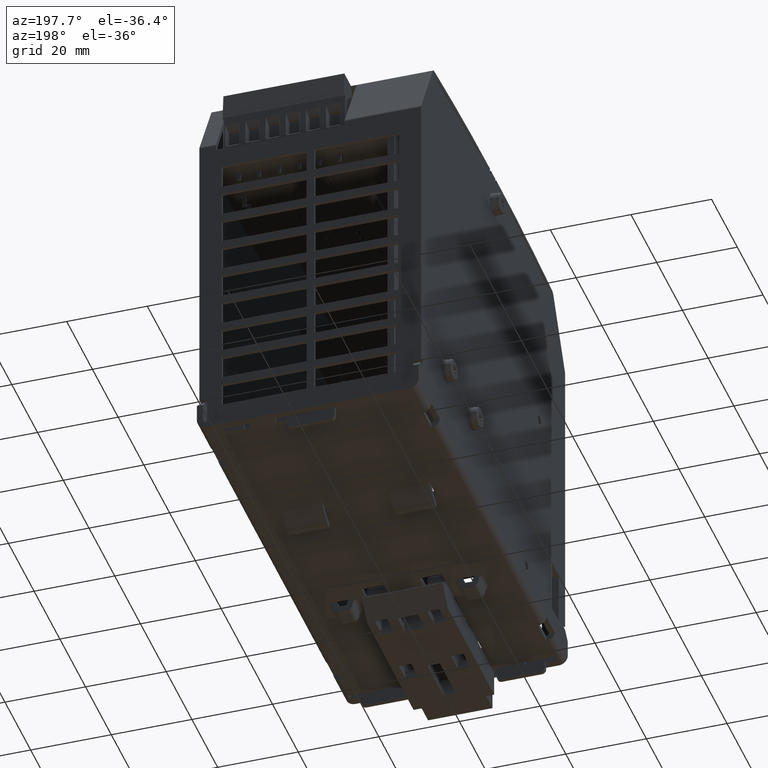
[diagram: clean part render]
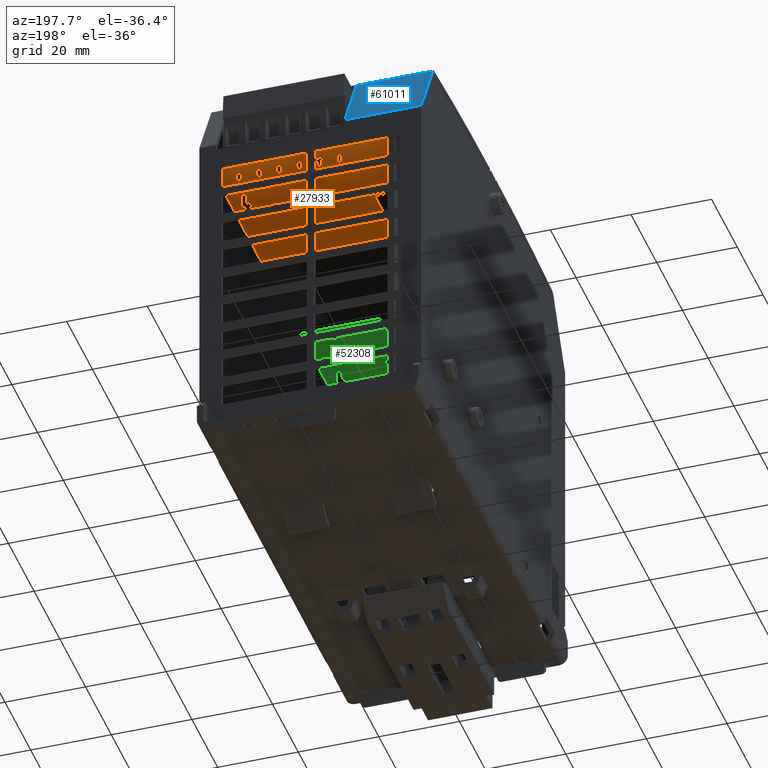
[diagram: same view with three faces highlighted in distinct colors, each labeled with its STEP entity id]
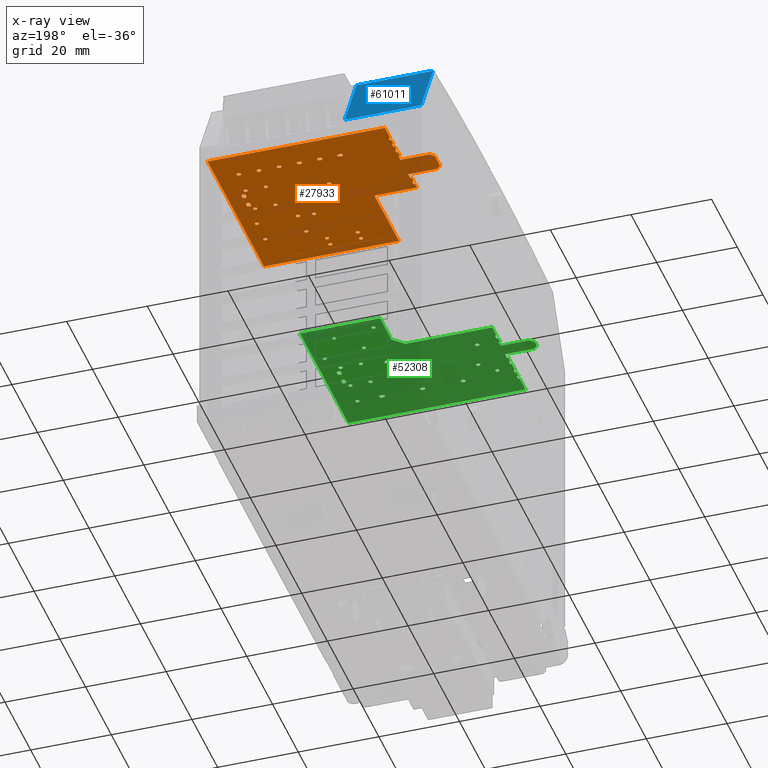
[diagram: x-ray of the same camera — body ghosted, the three highlighted faces saturated]
A machine part, auxiliary view with three faces highlighted in distinct colors.
The next image is the same camera in x-ray (body ghosted, the three faces saturated) — at least one of them is partly hidden behind the body in this view.
Their STEP definitions:

[orange] entity #27933 — the highlighted planar face has unit normal (0, 0, 1).
#25372=CARTESIAN_POINT('',(0.885543307086679,1.50557886499046,3.169708661417326));
#25373=VERTEX_POINT('',#25372);
#25374=CARTESIAN_POINT('',(0.885543307086679,1.544948943730618,3.169708661417326));
#25375=VERTEX_POINT('',#25374);
#25376=CARTESIAN_POINT('',(0.885543307086679,1.50557886499046,3.169708661417326));
#25377=DIRECTION('',(0.0,1.0,0.0));
#25378=VECTOR('',#25377,0.039370078740157);
#25379=LINE('',#25376,#25378);
#25380=EDGE_CURVE('',#25373,#25375,#25379,.T.);
#25431=CARTESIAN_POINT('',(0.884717067642148,1.50557886499046,3.169708661417326));
#25432=VERTEX_POINT('',#25431);
#25433=CARTESIAN_POINT('',(0.884717067642148,1.50557886499046,3.169708661417326));
#25434=DIRECTION('',(1.0,0.0,0.0));
#25435=VECTOR('',#25434,0.000826239444531);
#25436=LINE('',#25433,#25435);
#25437=EDGE_CURVE('',#25432,#25373,#25436,.T.);
#25523=CARTESIAN_POINT('',(0.846173228346522,1.544948943730618,3.169708661417326));
#25524=VERTEX_POINT('',#25523);
#25525=CARTESIAN_POINT('',(0.885543307086679,1.544948943730618,3.169708661417326));
#25526=DIRECTION('',(-1.0,0.0,0.0));
#25527=VECTOR('',#25526,0.039370078740158);
#25528=LINE('',#25525,#25527);
#25529=EDGE_CURVE('',#25375,#25524,#25528,.T.);
#25555=CARTESIAN_POINT('',(0.846173228346521,1.513532694947912,3.169708661417326));
#25556=VERTEX_POINT('',#25555);
#25565=CARTESIAN_POINT('',(0.846173228346521,1.544948943730618,3.169708661417326));
#25566=DIRECTION('',(0.0,-1.0,0.0));
#25567=VECTOR('',#25566,0.031416248782706);
#25568=LINE('',#25565,#25567);
#25569=EDGE_CURVE('',#25524,#25556,#25568,.T.);
#25618=CARTESIAN_POINT('',(0.846173228346521,1.386546045209567,3.169708661417326));
#25619=VERTEX_POINT('',#25618);
#25620=CARTESIAN_POINT('',(0.846173228346522,1.355019560206388,3.169708661417326));
#25621=VERTEX_POINT('',#25620);
#25622=CARTESIAN_POINT('',(0.846173228346521,1.386546045209567,3.169708661417326));
#25623=DIRECTION('',(0.0,-1.0,0.0));
#25624=VECTOR('',#25623,0.031526485003179);
#25625=LINE('',#25622,#25624);
#25626=EDGE_CURVE('',#25619,#25621,#25625,.T.);
#26240=CARTESIAN_POINT('',(0.885543307086679,1.394389638946545,3.169708661417326));
#26241=VERTEX_POINT('',#26240);
#26242=CARTESIAN_POINT('',(0.884736429813317,1.394389638946545,3.169708661417326));
#26243=VERTEX_POINT('',#26242);
#26244=CARTESIAN_POINT('',(0.885543307086679,1.394389638946545,3.169708661417326));
#26245=DIRECTION('',(-1.0,0.0,0.0));
#26246=VECTOR('',#26245,0.000806877273363);
#26247=LINE('',#26244,#26246);
#26248=EDGE_CURVE('',#26241,#26243,#26247,.T.);
#26344=CARTESIAN_POINT('',(0.885543307086679,1.355019560206388,3.169708661417326));
#26345=VERTEX_POINT('',#26344);
#26346=CARTESIAN_POINT('',(0.846173228346522,1.355019560206388,3.169708661417326));
#26347=DIRECTION('',(1.0,0.0,0.0));
#26348=VECTOR('',#26347,0.039370078740158);
#26349=LINE('',#26346,#26348);
#26350=EDGE_CURVE('',#25621,#26345,#26349,.T.);
#26447=CARTESIAN_POINT('',(0.885543307086679,1.355019560206388,3.169708661417326));
#26448=DIRECTION('',(0.0,1.0,0.0));
#26449=VECTOR('',#26448,0.039370078740157);
#26450=LINE('',#26447,#26449);
#26451=EDGE_CURVE('',#26345,#26241,#26450,.T.);
#27089=CARTESIAN_POINT('',(0.002310789090264,1.372964567165214,3.169708661417326));
#27090=DIRECTION('',(0.0,0.0,1.0));
#27091=DIRECTION('',(1.0,0.0,0.0));
#27092=AXIS2_PLACEMENT_3D('',#27089,#27090,#27091);
#27093=PLANE('',#27092);
#27094=CARTESIAN_POINT('',(-0.70866141732277,1.942039370078739,3.169708661417326));
#27095=VERTEX_POINT('',#27094);
#27096=CARTESIAN_POINT('',(-0.70866141732277,1.87903937007874,3.169708661417326));
#27097=VERTEX_POINT('',#27096);
#27098=CARTESIAN_POINT('',(-0.70866141732277,1.942039370078739,3.169708661417326));
#27099=DIRECTION('',(0.0,-1.0,0.0));
#27100=VECTOR('',#27099,0.062999999999999);
#27101=LINE('',#27098,#27100);
#27102=EDGE_CURVE('',#27095,#27097,#27101,.T.);
#27103=ORIENTED_EDGE('',*,*,#27102,.F.);
#27104=CARTESIAN_POINT('',(-0.69366141732277,1.942039370078739,3.169708661417326));
#27105=VERTEX_POINT('',#27104);
#27106=CARTESIAN_POINT('',(-0.69366141732277,1.942039370078739,3.169708661417326));
#27107=DIRECTION('',(-1.0,0.0,0.0));
#27108=VECTOR('',#27107,0.015);
#27109=LINE('',#27106,#27108);
#27110=EDGE_CURVE('',#27105,#27095,#27109,.T.);
#27111=ORIENTED_EDGE('',*,*,#27110,.F.);
#27112=CARTESIAN_POINT('',(-0.69366141732277,1.980039370078739,3.169708661417326));
#27113=VERTEX_POINT('',#27112);
#27114=CARTESIAN_POINT('',(-0.69366141732277,1.980039370078739,3.169708661417326));
#27115=DIRECTION('',(0.0,-1.0,0.0));
#27116=VECTOR('',#27115,0.038);
#27117=LINE('',#27114,#27116);
#27118=EDGE_CURVE('',#27113,#27105,#27117,.T.);
#27119=ORIENTED_EDGE('',*,*,#27118,.F.);
#27120=CARTESIAN_POINT('',(-0.70866141732277,1.980039370078739,3.169708661417326));
#27121=VERTEX_POINT('',#27120);
#27122=CARTESIAN_POINT('',(-0.70866141732277,1.980039370078739,3.169708661417326));
#27123=DIRECTION('',(1.0,0.0,0.0));
#27124=VECTOR('',#27123,0.015);
#27125=LINE('',#27122,#27124);
#27126=EDGE_CURVE('',#27121,#27113,#27125,.T.);
#27127=ORIENTED_EDGE('',*,*,#27126,.F.);
#27128=CARTESIAN_POINT('',(-0.70866141732277,2.058897637795275,3.169708661417326));
#27129=VERTEX_POINT('',#27128);
#27130=CARTESIAN_POINT('',(-0.70866141732277,2.058897637795275,3.169708661417326));
#27131=DIRECTION('',(0.0,-1.0,0.0));
#27132=VECTOR('',#27131,0.078858267716536);
#27133=LINE('',#27130,#27132);
#27134=EDGE_CURVE('',#27129,#27121,#27133,.T.);
#27135=ORIENTED_EDGE('',*,*,#27134,.F.);
#27136=CARTESIAN_POINT('',(-0.70866141732277,2.143039370078739,3.169708661417326));
#27137=VERTEX_POINT('',#27136);
#27138=CARTESIAN_POINT('',(-0.70866141732277,2.143039370078739,3.169708661417326));
#27139=DIRECTION('',(0.0,-1.0,0.0));
#27140=VECTOR('',#27139,0.084141732283464);
#27141=LINE('',#27138,#27140);
#27142=EDGE_CURVE('',#27137,#27129,#27141,.T.);
#27143=ORIENTED_EDGE('',*,*,#27142,.F.);
#27144=CARTESIAN_POINT('',(1.02333858267723,2.143039370078739,3.169708661417326));
#27145=VERTEX_POINT('',#27144);
#27146=CARTESIAN_POINT('',(1.02333858267723,2.143039370078739,3.169708661417326));
#27147=DIRECTION('',(-1.0,0.0,0.0));
#27148=VECTOR('',#27147,1.732);
#27149=LINE('',#27146,#27148);
#27150=EDGE_CURVE('',#27145,#27137,#27149,.T.);
#27151=ORIENTED_EDGE('',*,*,#27150,.F.);
#27152=CARTESIAN_POINT('',(1.02333858267723,0.413039370078739,3.169708661417326));
#27153=VERTEX_POINT('',#27152);
#27154=CARTESIAN_POINT('',(1.02333858267723,0.413039370078739,3.169708661417326));
#27155=DIRECTION('',(0.0,1.0,0.0));
#27156=VECTOR('',#27155,1.73);
#27157=LINE('',#27154,#27156);
#27158=EDGE_CURVE('',#27153,#27145,#27157,.T.);
#27159=ORIENTED_EDGE('',*,*,#27158,.F.);
#27160=CARTESIAN_POINT('',(-0.29366141732277,0.413039370078739,3.169708661417326));
#27161=VERTEX_POINT('',#27160);
#27162=CARTESIAN_POINT('',(-0.29366141732277,0.413039370078739,3.169708661417326));
#27163=DIRECTION('',(1.0,0.0,0.0));
#27164=VECTOR('',#27163,1.317);
#27165=LINE('',#27162,#27164);
#27166=EDGE_CURVE('',#27161,#27153,#27165,.T.);
#27167=ORIENTED_EDGE('',*,*,#27166,.F.);
#27168=CARTESIAN_POINT('',(-0.29366141732277,1.159039370078739,3.169708661417326));
#27169=VERTEX_POINT('',#27168);
#27170=CARTESIAN_POINT('',(-0.29366141732277,1.159039370078739,3.169708661417326));
#27171=DIRECTION('',(0.0,-1.0,0.0));
#27172=VECTOR('',#27171,0.746);
#27173=LINE('',#27170,#27172);
#27174=EDGE_CURVE('',#27169,#27161,#27173,.T.);
#27175=ORIENTED_EDGE('',*,*,#27174,.F.);
#27176=CARTESIAN_POINT('',(-0.70866141732277,1.159039370078739,3.169708661417326));
#27177=VERTEX_POINT('',#27176);
#27178=CARTESIAN_POINT('',(-0.70866141732277,1.159039370078739,3.169708661417326));
#27179=DIRECTION('',(1.0,0.0,0.0));
#27180=VECTOR('',#27179,0.415);
#27181=LINE('',#27178,#27180);
#27182=EDGE_CURVE('',#27177,#27169,#27181,.T.);
#27183=ORIENTED_EDGE('',*,*,#27182,.F.);
#27184=CARTESIAN_POINT('',(-0.70866141732277,1.219039370078739,3.169708661417326));
#27185=VERTEX_POINT('',#27184);
#27186=CARTESIAN_POINT('',(-0.70866141732277,1.21903937007874,3.169708661417326));
#27187=DIRECTION('',(0.0,-1.0,0.0));
#27188=VECTOR('',#27187,0.06);
#27189=LINE('',#27186,#27188);
#27190=EDGE_CURVE('',#27185,#27177,#27189,.T.);
#27191=ORIENTED_EDGE('',*,*,#27190,.F.);
#27192=CARTESIAN_POINT('',(-0.69366141732277,1.219039370078739,3.169708661417326));
#27193=VERTEX_POINT('',#27192);
#27194=CARTESIAN_POINT('',(-0.69366141732277,1.219039370078739,3.169708661417326));
#27195=DIRECTION('',(-1.0,0.0,0.0));
#27196=VECTOR('',#27195,0.015);
#27197=LINE('',#27194,#27196);
#27198=EDGE_CURVE('',#27193,#27185,#27197,.T.);
#27199=ORIENTED_EDGE('',*,*,#27198,.F.);
#27200=CARTESIAN_POINT('',(-0.69366141732277,1.25903937007874,3.169708661417326));
#27201=VERTEX_POINT('',#27200);
#27202=CARTESIAN_POINT('',(-0.69366141732277,1.25903937007874,3.169708661417326));
#27203=DIRECTION('',(0.0,-1.0,0.0));
#27204=VECTOR('',#27203,0.04);
#27205=LINE('',#27202,#27204);
#27206=EDGE_CURVE('',#27201,#27193,#27205,.T.);
#27207=ORIENTED_EDGE('',*,*,#27206,.F.);
#27208=CARTESIAN_POINT('',(-0.70866141732277,1.25903937007874,3.169708661417326));
#27209=VERTEX_POINT('',#27208);
#27210=CARTESIAN_POINT('',(-0.70866141732277,1.25903937007874,3.169708661417326));
#27211=DIRECTION('',(1.0,0.0,0.0));
#27212=VECTOR('',#27211,0.015);
#27213=LINE('',#27210,#27212);
#27214=EDGE_CURVE('',#27209,#27201,#27213,.T.);
#27215=ORIENTED_EDGE('',*,*,#27214,.F.);
#27216=CARTESIAN_POINT('',(-0.70866141732277,1.322039370078739,3.169708661417326));
#27217=VERTEX_POINT('',#27216);
#27218=CARTESIAN_POINT('',(-0.70866141732277,1.322039370078739,3.169708661417326));
#27219=DIRECTION('',(0.0,-1.0,0.0));
#27220=VECTOR('',#27219,0.063);
#27221=LINE('',#27218,#27220);
#27222=EDGE_CURVE('',#27217,#27209,#27221,.T.);
#27223=ORIENTED_EDGE('',*,*,#27222,.F.);
#27224=CARTESIAN_POINT('',(-0.69366141732277,1.322039370078739,3.169708661417326));
#27225=VERTEX_POINT('',#27224);
#27226=CARTESIAN_POINT('',(-0.69366141732277,1.322039370078739,3.169708661417326));
#27227=DIRECTION('',(-1.0,0.0,0.0));
#27228=VECTOR('',#27227,0.015);
#27229=LINE('',#27226,#27228);
#27230=EDGE_CURVE('',#27225,#27217,#27229,.T.);
#27231=ORIENTED_EDGE('',*,*,#27230,.F.);
#27232=CARTESIAN_POINT('',(-0.69366141732277,1.382039370078739,3.169708661417326));
#27233=VERTEX_POINT('',#27232);
#27234=CARTESIAN_POINT('',(-0.69366141732277,1.382039370078739,3.169708661417326));
#27235=DIRECTION('',(0.0,-1.0,0.0));
#27236=VECTOR('',#27235,0.06);
#27237=LINE('',#27234,#27236);
#27238=EDGE_CURVE('',#27233,#27225,#27237,.T.);
#27239=ORIENTED_EDGE('',*,*,#27238,.F.);
#27240=CARTESIAN_POINT('',(-0.97866141732277,1.382039370078739,3.169708661417326));
#27241=VERTEX_POINT('',#27240);
#27242=CARTESIAN_POINT('',(-0.97866141732277,1.382039370078739,3.169708661417326));
#27243=DIRECTION('',(1.0,0.0,0.0));
#27244=VECTOR('',#27243,0.285);
#27245=LINE('',#27242,#27244);
#27246=EDGE_CURVE('',#27241,#27233,#27245,.T.);
#27247=ORIENTED_EDGE('',*,*,#27246,.F.);
#27248=CARTESIAN_POINT('',(-1.01866141732277,1.42203937007874,3.169708661417326));
#27249=VERTEX_POINT('',#27248);
#27250=CARTESIAN_POINT('',(-1.01866141732277,1.42203937007874,3.169708661417326));
#27251=DIRECTION('',(0.707106781186548,-0.707106781186548,0.0));
#27252=VECTOR('',#27251,0.056568542494924);
#27253=LINE('',#27250,#27252);
#27254=EDGE_CURVE('',#27249,#27241,#27253,.T.);
#27255=ORIENTED_EDGE('',*,*,#27254,.F.);
#27256=CARTESIAN_POINT('',(-1.01866141732277,1.580039370078739,3.169708661417326));
#27257=VERTEX_POINT('',#27256);
#27258=CARTESIAN_POINT('',(-1.01866141732277,1.580039370078739,3.169708661417326));
#27259=DIRECTION('',(0.0,-1.0,0.0));
#27260=VECTOR('',#27259,0.158);
#27261=LINE('',#27258,#27260);
#27262=EDGE_CURVE('',#27257,#27249,#27261,.T.);
#27263=ORIENTED_EDGE('',*,*,#27262,.F.);
#27264=CARTESIAN_POINT('',(-0.97866141732277,1.620039370078739,3.169708661417326));
#27265=VERTEX_POINT('',#27264);
#27266=CARTESIAN_POINT('',(-0.97866141732277,1.620039370078739,3.169708661417326));
#27267=DIRECTION('',(-0.707106781186553,-0.707106781186542,0.0));
#27268=VECTOR('',#27267,0.056568542494923);
#27269=LINE('',#27266,#27268);
#27270=EDGE_CURVE('',#27265,#27257,#27269,.T.);
#27271=ORIENTED_EDGE('',*,*,#27270,.F.);
#27272=CARTESIAN_POINT('',(-0.69366141732277,1.620039370078739,3.169708661417326));
#27273=VERTEX_POINT('',#27272);
#27274=CARTESIAN_POINT('',(-0.69366141732277,1.620039370078739,3.169708661417326));
#27275=DIRECTION('',(-1.0,0.0,0.0));
#27276=VECTOR('',#27275,0.285);
#27277=LINE('',#27274,#27276);
#27278=EDGE_CURVE('',#27273,#27265,#27277,.T.);
#27279=ORIENTED_EDGE('',*,*,#27278,.F.);
#27280=CARTESIAN_POINT('',(-0.69366141732277,1.67903937007874,3.169708661417326));
#27281=VERTEX_POINT('',#27280);
#27282=CARTESIAN_POINT('',(-0.69366141732277,1.67903937007874,3.169708661417326));
#27283=DIRECTION('',(0.0,-1.0,0.0));
#27284=VECTOR('',#27283,0.059000000000001);
#27285=LINE('',#27282,#27284);
#27286=EDGE_CURVE('',#27281,#27273,#27285,.T.);
#27287=ORIENTED_EDGE('',*,*,#27286,.F.);
#27288=CARTESIAN_POINT('',(-0.70866141732277,1.67903937007874,3.169708661417326));
#27289=VERTEX_POINT('',#27288);
#27290=CARTESIAN_POINT('',(-0.70866141732277,1.67903937007874,3.169708661417326));
#27291=DIRECTION('',(1.0,0.0,0.0));
#27292=VECTOR('',#27291,0.015);
#27293=LINE('',#27290,#27292);
#27294=EDGE_CURVE('',#27289,#27281,#27293,.T.);
#27295=ORIENTED_EDGE('',*,*,#27294,.F.);
#27296=CARTESIAN_POINT('',(-0.70866141732277,1.74203937007874,3.169708661417326));
#27297=VERTEX_POINT('',#27296);
#27298=CARTESIAN_POINT('',(-0.70866141732277,1.74203937007874,3.169708661417326));
#27299=DIRECTION('',(0.0,-1.0,0.0));
#27300=VECTOR('',#27299,0.063);
#27301=LINE('',#27298,#27300);
#27302=EDGE_CURVE('',#27297,#27289,#27301,.T.);
#27303=ORIENTED_EDGE('',*,*,#27302,.F.);
#27304=CARTESIAN_POINT('',(-0.69366141732277,1.74203937007874,3.169708661417326));
#27305=VERTEX_POINT('',#27304);
#27306=CARTESIAN_POINT('',(-0.69366141732277,1.74203937007874,3.169708661417326));
#27307=DIRECTION('',(-1.0,0.0,0.0));
#27308=VECTOR('',#27307,0.015);
#27309=LINE('',#27306,#27308);
#27310=EDGE_CURVE('',#27305,#27297,#27309,.T.);
#27311=ORIENTED_EDGE('',*,*,#27310,.F.);
#27312=CARTESIAN_POINT('',(-0.69366141732277,1.783039370078739,3.169708661417326));
#27313=VERTEX_POINT('',#27312);
#27314=CARTESIAN_POINT('',(-0.69366141732277,1.783039370078739,3.169708661417326));
#27315=DIRECTION('',(0.0,-1.0,0.0));
#27316=VECTOR('',#27315,0.040999999999999);
#27317=LINE('',#27314,#27316);
#27318=EDGE_CURVE('',#27313,#27305,#27317,.T.);
#27319=ORIENTED_EDGE('',*,*,#27318,.F.);
#27320=CARTESIAN_POINT('',(-0.70866141732277,1.783039370078739,3.169708661417326));
#27321=VERTEX_POINT('',#27320);
#27322=CARTESIAN_POINT('',(-0.70866141732277,1.783039370078739,3.169708661417326));
#27323=DIRECTION('',(1.0,0.0,0.0));
#27324=VECTOR('',#27323,0.015);
#27325=LINE('',#27322,#27324);
#27326=EDGE_CURVE('',#27321,#27313,#27325,.T.);
#27327=ORIENTED_EDGE('',*,*,#27326,.F.);
#27328=CARTESIAN_POINT('',(-0.70866141732277,1.838039370078739,3.169708661417326));
#27329=VERTEX_POINT('',#27328);
#27330=CARTESIAN_POINT('',(-0.70866141732277,1.838039370078739,3.169708661417326));
#27331=DIRECTION('',(0.0,-1.0,0.0));
#27332=VECTOR('',#27331,0.055);
#27333=LINE('',#27330,#27332);
#27334=EDGE_CURVE('',#27329,#27321,#27333,.T.);
#27335=ORIENTED_EDGE('',*,*,#27334,.F.);
#27336=CARTESIAN_POINT('',(-0.69366141732277,1.838039370078739,3.169708661417326));
#27337=VERTEX_POINT('',#27336);
#27338=CARTESIAN_POINT('',(-0.69366141732277,1.838039370078739,3.169708661417326));
#27339=DIRECTION('',(-1.0,0.0,0.0));
#27340=VECTOR('',#27339,0.015);
#27341=LINE('',#27338,#27340);
#27342=EDGE_CURVE('',#27337,#27329,#27341,.T.);
#27343=ORIENTED_EDGE('',*,*,#27342,.F.);
#27344=CARTESIAN_POINT('',(-0.69366141732277,1.87903937007874,3.169708661417326));
#27345=VERTEX_POINT('',#27344);
#27346=CARTESIAN_POINT('',(-0.69366141732277,1.87903937007874,3.169708661417326));
#27347=DIRECTION('',(0.0,-1.0,0.0));
#27348=VECTOR('',#27347,0.041);
#27349=LINE('',#27346,#27348);
#27350=EDGE_CURVE('',#27345,#27337,#27349,.T.);
#27351=ORIENTED_EDGE('',*,*,#27350,.F.);
#27352=CARTESIAN_POINT('',(-0.70866141732277,1.87903937007874,3.169708661417326));
#27353=DIRECTION('',(1.0,0.0,0.0));
#27354=VECTOR('',#27353,0.015);
#27355=LINE('',#27352,#27354);
#27356=EDGE_CURVE('',#27097,#27345,#27355,.T.);
#27357=ORIENTED_EDGE('',*,*,#27356,.F.);
#27358=EDGE_LOOP('',(#27103,#27111,#27119,#27127,#27135,#27143,#27151,#27159,#27167,#27175,#27183,#27191,#27199,#27207,#27215,#27223,#27231,#27239,#27247,#27255,#27263,#27271,#27279,#27287,#27295,#27303,#27311,#27319,#27327,#27335,#27343,#27351,#27357));
#27359=FACE_OUTER_BOUND('',#27358,.T.);
#27360=CARTESIAN_POINT('',(0.820149606299277,1.845291338582676,3.169708661417326));
#27361=VERTEX_POINT('',#27360);
#27362=CARTESIAN_POINT('',(0.828023622047308,1.845291338582676,3.169708661417326));
#27363=VERTEX_POINT('',#27362);
#27364=CARTESIAN_POINT('',(0.820149606299277,1.845291338582676,3.169708661417326));
#27365=DIRECTION('',(1.0,0.0,0.0));
#27366=VECTOR('',#27365,0.007874015748031);
#27367=LINE('',#27364,#27366);
#27368=EDGE_CURVE('',#27361,#27363,#27367,.T.);
#27369=ORIENTED_EDGE('',*,*,#27368,.T.);
#27370=CARTESIAN_POINT('',(0.828023622047308,1.876787401574802,3.169708661417326));
#27371=VERTEX_POINT('',#27370);
#27372=CARTESIAN_POINT('',(0.828023622047308,1.845291338582676,3.169708661417326));
#27373=DIRECTION('',(0.0,1.0,0.0));
#27374=VECTOR('',#27373,0.031496062992126);
#27375=LINE('',#27372,#27374);
#27376=EDGE_CURVE('',#27363,#27371,#27375,.T.);
#27377=ORIENTED_EDGE('',*,*,#27376,.T.);
#27378=CARTESIAN_POINT('',(0.820149606299279,1.876787401574802,3.169708661417326));
#27379=VERTEX_POINT('',#27378);
#27380=CARTESIAN_POINT('',(0.828023622047308,1.876787401574802,3.169708661417326));
#27381=DIRECTION('',(-1.0,0.0,0.0));
#27382=VECTOR('',#27381,0.007874015748029);
#27383=LINE('',#27380,#27382);
#27384=EDGE_CURVE('',#27371,#27379,#27383,.T.);
#27385=ORIENTED_EDGE('',*,*,#27384,.T.);
#27386=CARTESIAN_POINT('',(0.796527559055182,1.876787401574802,3.169708661417326));
#27387=VERTEX_POINT('',#27386);
#27388=CARTESIAN_POINT('',(0.80833858267723,1.86103937007874,3.169708661417326));
#27389=DIRECTION('',(0.0,0.0,1.0));
#27390=DIRECTION('',(1.0,0.0,0.0));
#27391=AXIS2_PLACEMENT_3D('',#27388,#27389,#27390);
#27392=CIRCLE('',#27391,0.019685039370079);
#27393=EDGE_CURVE('',#27379,#27387,#27392,.T.);
#27394=ORIENTED_EDGE('',*,*,#27393,.T.);
#27395=CARTESIAN_POINT('',(0.78865354330715,1.876787401574802,3.169708661417326));
#27396=VERTEX_POINT('',#27395);
#27397=CARTESIAN_POINT('',(0.796527559055182,1.876787401574802,3.169708661417326));
#27398=DIRECTION('',(-1.0,0.0,0.0));
#27399=VECTOR('',#27398,0.007874015748032);
#27400=LINE('',#27397,#27399);
#27401=EDGE_CURVE('',#27387,#27396,#27400,.T.);
#27402=ORIENTED_EDGE('',*,*,#27401,.T.);
#27403=CARTESIAN_POINT('',(0.78865354330715,1.845291338582676,3.169708661417326));
#27404=VERTEX_POINT('',#27403);
#27405=CARTESIAN_POINT('',(0.78865354330715,1.876787401574802,3.169708661417326));
#27406=DIRECTION('',(0.0,-1.0,0.0));
#27407=VECTOR('',#27406,0.031496062992126);
#27408=LINE('',#27405,#27407);
#27409=EDGE_CURVE('',#27396,#27404,#27408,.T.);
#27410=ORIENTED_EDGE('',*,*,#27409,.T.);
#27411=CARTESIAN_POINT('',(0.796527559055184,1.845291338582676,3.169708661417326));
#27412=VERTEX_POINT('',#27411);
#27413=CARTESIAN_POINT('',(0.78865354330715,1.845291338582676,3.169708661417326));
#27414=DIRECTION('',(1.0,0.0,0.0));
#27415=VECTOR('',#27414,0.007874015748034);
#27416=LINE('',#27413,#27415);
#27417=EDGE_CURVE('',#27404,#27412,#27416,.T.);
#27418=ORIENTED_EDGE('',*,*,#27417,.T.);
#27419=CARTESIAN_POINT('',(0.80833858267723,1.86103937007874,3.169708661417326));
#27420=DIRECTION('',(0.0,0.0,1.0));
#27421=DIRECTION('',(1.0,0.0,0.0));
#27422=AXIS2_PLACEMENT_3D('',#27419,#27420,#27421);
#27423=CIRCLE('',#27422,0.019685039370079);
#27424=EDGE_CURVE('',#27412,#27361,#27423,.T.);
#27425=ORIENTED_EDGE('',*,*,#27424,.T.);
#27426=EDGE_LOOP('',(#27369,#27377,#27385,#27394,#27402,#27410,#27418,#27425));
#27427=FACE_BOUND('',#27426,.T.);
#27428=CARTESIAN_POINT('',(0.631173228346521,1.876787401574802,3.169708661417326));
#27429=VERTEX_POINT('',#27428);
#27430=CARTESIAN_POINT('',(0.623149606299279,1.876787401574802,3.169708661417326));
#27431=VERTEX_POINT('',#27430);
#27432=CARTESIAN_POINT('',(0.631173228346521,1.876787401574802,3.169708661417326));
#27433=DIRECTION('',(-1.0,0.0,0.0));
#27434=VECTOR('',#27433,0.008023622047242);
#27435=LINE('',#27432,#27434);
#27436=EDGE_CURVE('',#27429,#27431,#27435,.T.);
#27437=ORIENTED_EDGE('',*,*,#27436,.T.);
#27438=CARTESIAN_POINT('',(0.599527559055182,1.876787401574802,3.169708661417326));
#27439=VERTEX_POINT('',#27438);
#27440=CARTESIAN_POINT('',(0.61133858267723,1.86103937007874,3.169708661417326));
#27441=DIRECTION('',(0.0,0.0,1.0));
#27442=DIRECTION('',(1.0,0.0,0.0));
#27443=AXIS2_PLACEMENT_3D('',#27440,#27441,#27442);
#27444=CIRCLE('',#27443,0.019685039370079);
#27445=EDGE_CURVE('',#27431,#27439,#27444,.T.);
#27446=ORIENTED_EDGE('',*,*,#27445,.T.);
#27447=CARTESIAN_POINT('',(0.591803149606363,1.876787401574802,3.169708661417326));
#27448=VERTEX_POINT('',#27447);
#27449=CARTESIAN_POINT('',(0.599527559055182,1.876787401574802,3.169708661417326));
#27450=DIRECTION('',(-1.0,0.0,0.0));
#27451=VECTOR('',#27450,0.007724409448819);
#27452=LINE('',#27449,#27451);
#27453=EDGE_CURVE('',#27439,#27448,#27452,.T.);
#27454=ORIENTED_EDGE('',*,*,#27453,.T.);
#27455=CARTESIAN_POINT('',(0.591803149606363,1.86346168916078,3.169708661417326));
#27456=VERTEX_POINT('',#27455);
#27457=CARTESIAN_POINT('',(0.591803149606363,1.876787401574802,3.169708661417326));
#27458=DIRECTION('',(0.0,-1.0,0.0));
#27459=VECTOR('',#27458,0.013325712414022);
#27460=LINE('',#27457,#27459);
#27461=EDGE_CURVE('',#27448,#27456,#27460,.T.);
#27462=ORIENTED_EDGE('',*,*,#27461,.T.);
#27463=CARTESIAN_POINT('',(0.591803149606363,1.8586170509967,3.169708661417326));
#27464=VERTEX_POINT('',#27463);
#27465=CARTESIAN_POINT('',(0.61133858267723,1.86103937007874,3.169708661417326));
#27466=DIRECTION('',(0.0,0.0,1.0));
#27467=DIRECTION('',(1.0,0.0,0.0));
#27468=AXIS2_PLACEMENT_3D('',#27465,#27466,#27467);
#27469=CIRCLE('',#27468,0.019685039370079);
#27470=EDGE_CURVE('',#27456,#27464,#27469,.T.);
#27471=ORIENTED_EDGE('',*,*,#27470,.T.);
#27472=CARTESIAN_POINT('',(0.591803149606363,1.845291338582676,3.169708661417326));
#27473=VERTEX_POINT('',#27472);
#27474=CARTESIAN_POINT('',(0.591803149606363,1.8586170509967,3.169708661417326));
#27475=DIRECTION('',(0.0,-1.0,0.0));
#27476=VECTOR('',#27475,0.013325712414024);
#27477=LINE('',#27474,#27476);
#27478=EDGE_CURVE('',#27464,#27473,#27477,.T.);
#27479=ORIENTED_EDGE('',*,*,#27478,.T.);
#27480=CARTESIAN_POINT('',(0.599527559055184,1.845291338582676,3.169708661417326));
#27481=VERTEX_POINT('',#27480);
#27482=CARTESIAN_POINT('',(0.591803149606363,1.845291338582676,3.169708661417326));
#27483=DIRECTION('',(1.0,0.0,0.0));
#27484=VECTOR('',#27483,0.007724409448821);
#27485=LINE('',#27482,#27484);
#27486=EDGE_CURVE('',#27473,#27481,#27485,.T.);
#27487=ORIENTED_EDGE('',*,*,#27486,.T.);
#27488=CARTESIAN_POINT('',(0.623149606299277,1.845291338582676,3.169708661417326));
#27489=VERTEX_POINT('',#27488);
#27490=CARTESIAN_POINT('',(0.61133858267723,1.86103937007874,3.169708661417326));
#27491=DIRECTION('',(0.0,0.0,1.0));
#27492=DIRECTION('',(1.0,0.0,0.0));
#27493=AXIS2_PLACEMENT_3D('',#27490,#27491,#27492);
#27494=CIRCLE('',#27493,0.019685039370079);
#27495=EDGE_CURVE('',#27481,#27489,#27494,.T.);
#27496=ORIENTED_EDGE('',*,*,#27495,.T.);
#27497=CARTESIAN_POINT('',(0.631173228346521,1.845291338582676,3.169708661417326));
#27498=VERTEX_POINT('',#27497);
#27499=CARTESIAN_POINT('',(0.623149606299277,1.845291338582676,3.169708661417326));
#27500=DIRECTION('',(1.0,0.0,0.0));
#27501=VECTOR('',#27500,0.008023622047244);
#27502=LINE('',#27499,#27501);
#27503=EDGE_CURVE('',#27489,#27498,#27502,.T.);
#27504=ORIENTED_EDGE('',*,*,#27503,.T.);
#27505=CARTESIAN_POINT('',(0.631173228346521,1.845291338582676,3.169708661417326));
#27506=DIRECTION('',(0.0,1.0,0.0));
#27507=VECTOR('',#27506,0.031496062992126);
#27508=LINE('',#27505,#27507);
#27509=EDGE_CURVE('',#27498,#27429,#27508,.T.);
#27510=ORIENTED_EDGE('',*,*,#27509,.T.);
#27511=EDGE_LOOP('',(#27437,#27446,#27454,#27462,#27471,#27479,#27487,#27496,#27504,#27510));
#27512=FACE_BOUND('',#27511,.T.);
#27513=CARTESIAN_POINT('',(0.009653543307151,0.658039370078739,3.169708661417326));
#27514=VERTEX_POINT('',#27513);
#27515=CARTESIAN_POINT('',(0.02933858267723,0.658039370078739,3.169708661417326));
#27516=DIRECTION('',(0.0,0.0,1.0));
#27517=DIRECTION('',(1.0,0.0,0.0));
#27518=AXIS2_PLACEMENT_3D('',#27515,#27516,#27517);
#27519=CIRCLE('',#27518,0.019685039370079);
#27520=EDGE_CURVE('',#27514,#27514,#27519,.T.);
#27521=ORIENTED_EDGE('',*,*,#27520,.T.);
#27522=EDGE_LOOP('',(#27521));
#27523=FACE_BOUND('',#27522,.T.);
#27524=CARTESIAN_POINT('',(0.009653543307151,0.558039370078739,3.169708661417326));
#27525=VERTEX_POINT('',#27524);
#27526=CARTESIAN_POINT('',(0.02933858267723,0.558039370078739,3.169708661417326));
#27527=DIRECTION('',(0.0,0.0,1.0));
#27528=DIRECTION('',(1.0,0.0,0.0));
#27529=AXIS2_PLACEMENT_3D('',#27526,#27527,#27528);
#27530=CIRCLE('',#27529,0.019685039370079);
#27531=EDGE_CURVE('',#27525,#27525,#27530,.T.);
#27532=ORIENTED_EDGE('',*,*,#27531,.T.);
#27533=EDGE_LOOP('',(#27532));
#27534=FACE_BOUND('',#27533,.T.);
#27535=CARTESIAN_POINT('',(0.309653543307151,0.558039370078739,3.169708661417326));
#27536=VERTEX_POINT('',#27535);
#27537=CARTESIAN_POINT('',(0.32933858267723,0.558039370078739,3.169708661417326));
#27538=DIRECTION('',(0.0,0.0,1.0));
#27539=DIRECTION('',(1.0,0.0,0.0));
#27540=AXIS2_PLACEMENT_3D('',#27537,#27538,#27539);
#27541=CIRCLE('',#27540,0.019685039370079);
#27542=EDGE_CURVE('',#27536,#27536,#27541,.T.);
#27543=ORIENTED_EDGE('',*,*,#27542,.T.);
#27544=EDGE_LOOP('',(#27543));
#27545=FACE_BOUND('',#27544,.T.);
#27546=CARTESIAN_POINT('',(0.309653543307151,0.658039370078739,3.169708661417326));
#27547=VERTEX_POINT('',#27546);
#27548=CARTESIAN_POINT('',(0.32933858267723,0.658039370078739,3.169708661417326));
#27549=DIRECTION('',(0.0,0.0,1.0));
#27550=DIRECTION('',(1.0,0.0,0.0));
#27551=AXIS2_PLACEMENT_3D('',#27548,#27549,#27550);
#27552=CIRCLE('',#27551,0.019685039370079);
#27553=EDGE_CURVE('',#27547,#27547,#27552,.T.);
#27554=ORIENTED_EDGE('',*,*,#27553,.T.);
#27555=EDGE_LOOP('',(#27554));
#27556=FACE_BOUND('',#27555,.T.);
#27557=CARTESIAN_POINT('',(0.309653543307151,1.058039370078739,3.169708661417326));
#27558=VERTEX_POINT('',#27557);
#27559=CARTESIAN_POINT('',(0.32933858267723,1.058039370078739,3.169708661417326));
#27560=DIRECTION('',(0.0,0.0,1.0));
#27561=DIRECTION('',(1.0,0.0,0.0));
#27562=AXIS2_PLACEMENT_3D('',#27559,#27560,#27561);
#27563=CIRCLE('',#27562,0.019685039370079);
#27564=EDGE_CURVE('',#27558,#27558,#27563,.T.);
#27565=ORIENTED_EDGE('',*,*,#27564,.T.);
#27566=EDGE_LOOP('',(#27565));
#27567=FACE_BOUND('',#27566,.T.);
#27568=CARTESIAN_POINT('',(0.030653543307151,1.46703937007874,3.169708661417326));
#27569=VERTEX_POINT('',#27568);
#27570=CARTESIAN_POINT('',(0.05033858267723,1.46703937007874,3.169708661417326));
#27571=DIRECTION('',(0.0,0.0,1.0));
#27572=DIRECTION('',(1.0,0.0,0.0));
#27573=AXIS2_PLACEMENT_3D('',#27570,#27571,#27572);
#27574=CIRCLE('',#27573,0.019685039370079);
#27575=EDGE_CURVE('',#27569,#27569,#27574,.T.);
#27576=ORIENTED_EDGE('',*,*,#27575,.T.);
#27577=EDGE_LOOP('',(#27576));
#27578=FACE_BOUND('',#27577,.T.);
#27579=CARTESIAN_POINT('',(0.462653543307151,0.817039370078739,3.169708661417326));
#27580=VERTEX_POINT('',#27579);
#27581=CARTESIAN_POINT('',(0.48233858267723,0.817039370078739,3.169708661417326));
#27582=DIRECTION('',(0.0,0.0,1.0));
#27583=DIRECTION('',(1.0,0.0,0.0));
#27584=AXIS2_PLACEMENT_3D('',#27581,#27582,#27583);
#27585=CIRCLE('',#27584,0.019685039370079);
#27586=EDGE_CURVE('',#27580,#27580,#27585,.T.);
#27587=ORIENTED_EDGE('',*,*,#27586,.T.);
#27588=EDGE_LOOP('',(#27587));
#27589=FACE_BOUND('',#27588,.T.);
#27590=CARTESIAN_POINT('',(0.862653543307152,0.817039370078739,3.169708661417326));
#27591=VERTEX_POINT('',#27590);
#27592=CARTESIAN_POINT('',(0.88233858267723,0.817039370078739,3.169708661417326));
#27593=DIRECTION('',(0.0,0.0,1.0));
#27594=DIRECTION('',(1.0,0.0,0.0));
#27595=AXIS2_PLACEMENT_3D('',#27592,#27593,#27594);
#27596=CIRCLE('',#27595,0.019685039370079);
#27597=EDGE_CURVE('',#27591,#27591,#27596,.T.);
#27598=ORIENTED_EDGE('',*,*,#27597,.T.);
#27599=EDGE_LOOP('',(#27598));
#27600=FACE_BOUND('',#27599,.T.);
#27601=CARTESIAN_POINT('',(0.462653543307151,1.073039370078739,3.169708661417326));
#27602=VERTEX_POINT('',#27601);
#27603=CARTESIAN_POINT('',(0.48233858267723,1.073039370078739,3.169708661417326));
#27604=DIRECTION('',(0.0,0.0,1.0));
#27605=DIRECTION('',(1.0,0.0,0.0));
#27606=AXIS2_PLACEMENT_3D('',#27603,#27604,#27605);
#27607=CIRCLE('',#27606,0.019685039370079);
#27608=EDGE_CURVE('',#27602,#27602,#27607,.T.);
#27609=ORIENTED_EDGE('',*,*,#27608,.T.);
#27610=EDGE_LOOP('',(#27609));
#27611=FACE_BOUND('',#27610,.T.);
#27612=CARTESIAN_POINT('',(0.862653543307152,1.073039370078739,3.169708661417326));
#27613=VERTEX_POINT('',#27612);
#27614=CARTESIAN_POINT('',(0.88233858267723,1.073039370078739,3.169708661417326));
#27615=DIRECTION('',(0.0,0.0,1.0));
#27616=DIRECTION('',(1.0,0.0,0.0));
#27617=AXIS2_PLACEMENT_3D('',#27614,#27615,#27616);
#27618=CIRCLE('',#27617,0.019685039370079);
#27619=EDGE_CURVE('',#27613,#27613,#27618,.T.);
#27620=ORIENTED_EDGE('',*,*,#27619,.T.);
#27621=EDGE_LOOP('',(#27620));
#27622=FACE_BOUND('',#27621,.T.);
#27623=CARTESIAN_POINT('',(0.608653543307152,1.302039370078739,3.169708661417326));
#27624=VERTEX_POINT('',#27623);
#27625=CARTESIAN_POINT('',(0.628338582677231,1.302039370078739,3.169708661417326));
#27626=DIRECTION('',(0.0,0.0,1.0));
#27627=DIRECTION('',(1.0,0.0,0.0));
#27628=AXIS2_PLACEMENT_3D('',#27625,#27626,#27627);
#27629=CIRCLE('',#27628,0.019685039370079);
#27630=EDGE_CURVE('',#27624,#27624,#27629,.T.);
#27631=ORIENTED_EDGE('',*,*,#27630,.T.);
#27632=EDGE_LOOP('',(#27631));
#27633=FACE_BOUND('',#27632,.T.);
#27634=CARTESIAN_POINT('',(0.805653543307151,1.302039370078739,3.169708661417326));
#27635=VERTEX_POINT('',#27634);
#27636=CARTESIAN_POINT('',(0.82533858267723,1.302039370078739,3.169708661417326));
#27637=DIRECTION('',(0.0,0.0,1.0));
#27638=DIRECTION('',(1.0,0.0,0.0));
#27639=AXIS2_PLACEMENT_3D('',#27636,#27637,#27638);
#27640=CIRCLE('',#27639,0.019685039370079);
#27641=EDGE_CURVE('',#27635,#27635,#27640,.T.);
#27642=ORIENTED_EDGE('',*,*,#27641,.T.);
#27643=EDGE_LOOP('',(#27642));
#27644=FACE_BOUND('',#27643,.T.);
#27645=ORIENTED_EDGE('',*,*,#25626,.T.);
#27646=ORIENTED_EDGE('',*,*,#26350,.T.);
#27647=ORIENTED_EDGE('',*,*,#26451,.T.);
#27648=ORIENTED_EDGE('',*,*,#26248,.T.);
#27649=CARTESIAN_POINT('',(0.86533858267723,1.39103937007874,3.169708661417326));
#27650=DIRECTION('',(0.0,0.0,1.0));
#27651=DIRECTION('',(1.0,0.0,0.0));
#27652=AXIS2_PLACEMENT_3D('',#27649,#27650,#27651);
#27653=CIRCLE('',#27652,0.019685039370079);
#27654=EDGE_CURVE('',#26243,#25619,#27653,.T.);
#27655=ORIENTED_EDGE('',*,*,#27654,.T.);
#27656=EDGE_LOOP('',(#27645,#27646,#27647,#27648,#27655));
#27657=FACE_BOUND('',#27656,.T.);
#27658=CARTESIAN_POINT('',(0.805653543307151,1.598039370078739,3.169708661417326));
#27659=VERTEX_POINT('',#27658);
#27660=CARTESIAN_POINT('',(0.82533858267723,1.598039370078739,3.169708661417326));
#27661=DIRECTION('',(0.0,0.0,1.0));
#27662=DIRECTION('',(1.0,0.0,0.0));
#27663=AXIS2_PLACEMENT_3D('',#27660,#27661,#27662);
#27664=CIRCLE('',#27663,0.019685039370079);
#27665=EDGE_CURVE('',#27659,#27659,#27664,.T.);
#27666=ORIENTED_EDGE('',*,*,#27665,.T.);
#27667=EDGE_LOOP('',(#27666));
#27668=FACE_BOUND('',#27667,.T.);
#27669=CARTESIAN_POINT('',(0.608653543307152,1.598039370078739,3.169708661417326));
#27670=VERTEX_POINT('',#27669);
#27671=CARTESIAN_POINT('',(0.628338582677231,1.598039370078739,3.169708661417326));
#27672=DIRECTION('',(0.0,0.0,1.0));
#27673=DIRECTION('',(1.0,0.0,0.0));
#27674=AXIS2_PLACEMENT_3D('',#27671,#27672,#27673);
#27675=CIRCLE('',#27674,0.019685039370079);
#27676=EDGE_CURVE('',#27670,#27670,#27675,.T.);
#27677=ORIENTED_EDGE('',*,*,#27676,.T.);
#27678=EDGE_LOOP('',(#27677));
#27679=FACE_BOUND('',#27678,.T.);
#27680=CARTESIAN_POINT('',(0.237472440944945,1.876787401574802,3.169708661417326));
#27681=VERTEX_POINT('',#27680);
#27682=CARTESIAN_POINT('',(0.223649606299278,1.876787401574802,3.169708661417326));
#27683=VERTEX_POINT('',#27682);
#27684=CARTESIAN_POINT('',(0.237472440944945,1.876787401574802,3.169708661417326));
#27685=DIRECTION('',(-1.0,0.0,0.0));
#27686=VECTOR('',#27685,0.013822834645667);
#27687=LINE('',#27684,#27686);
#27688=EDGE_CURVE('',#27681,#27683,#27687,.T.);
#27689=ORIENTED_EDGE('',*,*,#27688,.T.);
#27690=CARTESIAN_POINT('',(0.200027559055182,1.876787401574802,3.169708661417326));
#27691=VERTEX_POINT('',#27690);
#27692=CARTESIAN_POINT('',(0.21183858267723,1.86103937007874,3.169708661417326));
#27693=DIRECTION('',(0.0,0.0,1.0));
#27694=DIRECTION('',(1.0,0.0,0.0));
#27695=AXIS2_PLACEMENT_3D('',#27692,#27693,#27694);
#27696=CIRCLE('',#27695,0.019685039370079);
#27697=EDGE_CURVE('',#27683,#27691,#27696,.T.);
#27698=ORIENTED_EDGE('',*,*,#27697,.T.);
#27699=CARTESIAN_POINT('',(0.198102362204788,1.876787401574802,3.169708661417326));
#27700=VERTEX_POINT('',#27699);
#27701=CARTESIAN_POINT('',(0.200027559055182,1.876787401574802,3.169708661417326));
#27702=DIRECTION('',(-1.0,0.0,0.0));
#27703=VECTOR('',#27702,0.001925196850394);
#27704=LINE('',#27701,#27703);
#27705=EDGE_CURVE('',#27691,#27700,#27704,.T.);
#27706=ORIENTED_EDGE('',*,*,#27705,.T.);
#27707=CARTESIAN_POINT('',(0.198102362204788,1.875139619088385,3.169708661417326));
#27708=VERTEX_POINT('',#27707);
#27709=CARTESIAN_POINT('',(0.198102362204788,1.876787401574802,3.169708661417326));
#27710=DIRECTION('',(0.0,-1.0,0.0));
#27711=VECTOR('',#27710,0.001647782486417);
#27712=LINE('',#27709,#27711);
#27713=EDGE_CURVE('',#27700,#27708,#27712,.T.);
#27714=ORIENTED_EDGE('',*,*,#27713,.T.);
#27715=CARTESIAN_POINT('',(0.198102362204788,1.846939121069094,3.169708661417326));
#27716=VERTEX_POINT('',#27715);
#27717=CARTESIAN_POINT('',(0.21183858267723,1.86103937007874,3.169708661417326));
#27718=DIRECTION('',(0.0,0.0,1.0));
#27719=DIRECTION('',(1.0,0.0,0.0));
#27720=AXIS2_PLACEMENT_3D('',#27717,#27718,#27719);
#27721=CIRCLE('',#27720,0.019685039370079);
#27722=EDGE_CURVE('',#27708,#27716,#27721,.T.);
#27723=ORIENTED_EDGE('',*,*,#27722,.T.);
#27724=CARTESIAN_POINT('',(0.198102362204788,1.845291338582676,3.169708661417326));
#27725=VERTEX_POINT('',#27724);
#27726=CARTESIAN_POINT('',(0.198102362204788,1.846939121069094,3.169708661417326));
#27727=DIRECTION('',(0.0,-1.0,0.0));
#27728=VECTOR('',#27727,0.001647782486418);
#27729=LINE('',#27726,#27728);
#27730=EDGE_CURVE('',#27716,#27725,#27729,.T.);
#27731=ORIENTED_EDGE('',*,*,#27730,.T.);
#27732=CARTESIAN_POINT('',(0.200027559055184,1.845291338582676,3.169708661417326));
#27733=VERTEX_POINT('',#27732);
#27734=CARTESIAN_POINT('',(0.198102362204788,1.845291338582676,3.169708661417326));
#27735=DIRECTION('',(1.0,0.0,0.0));
#27736=VECTOR('',#27735,0.001925196850396);
#27737=LINE('',#27734,#27736);
#27738=EDGE_CURVE('',#27725,#27733,#27737,.T.);
#27739=ORIENTED_EDGE('',*,*,#27738,.T.);
#27740=CARTESIAN_POINT('',(0.223649606299276,1.845291338582676,3.169708661417326));
#27741=VERTEX_POINT('',#27740);
#27742=CARTESIAN_POINT('',(0.21183858267723,1.86103937007874,3.169708661417326));
#27743=DIRECTION('',(0.0,0.0,1.0));
#27744=DIRECTION('',(1.0,0.0,0.0));
#27745=AXIS2_PLACEMENT_3D('',#27742,#27743,#27744);
#27746=CIRCLE('',#27745,0.019685039370079);
#27747=EDGE_CURVE('',#27733,#27741,#27746,.T.);
#27748=ORIENTED_EDGE('',*,*,#27747,.T.);
#27749=CARTESIAN_POINT('',(0.237472440944945,1.845291338582676,3.169708661417326));
#27750=VERTEX_POINT('',#27749);
#27751=CARTESIAN_POINT('',(0.223649606299276,1.845291338582676,3.169708661417326));
#27752=DIRECTION('',(1.0,0.0,0.0));
#27753=VECTOR('',#27752,0.013822834645669);
#27754=LINE('',#27751,#27753);
#27755=EDGE_CURVE('',#27741,#27750,#27754,.T.);
#27756=ORIENTED_EDGE('',*,*,#27755,.T.);
#27757=CARTESIAN_POINT('',(0.237472440944945,1.845291338582676,3.169708661417326));
#27758=DIRECTION('',(0.0,1.0,0.0));
#27759=VECTOR('',#27758,0.031496062992126);
#27760=LINE('',#27757,#27759);
#27761=EDGE_CURVE('',#27750,#27681,#27760,.T.);
#27762=ORIENTED_EDGE('',*,*,#27761,.T.);
#27763=EDGE_LOOP('',(#27689,#27698,#27706,#27714,#27723,#27731,#27739,#27748,#27756,#27762));
#27764=FACE_BOUND('',#27763,.T.);
#27765=CARTESIAN_POINT('',(0.434322834645733,1.876787401574802,3.169708661417326));
#27766=VERTEX_POINT('',#27765);
#27767=CARTESIAN_POINT('',(0.423649606299278,1.876787401574802,3.169708661417326));
#27768=VERTEX_POINT('',#27767);
#27769=CARTESIAN_POINT('',(0.434322834645733,1.876787401574802,3.169708661417326));
#27770=DIRECTION('',(-1.0,0.0,0.0));
#27771=VECTOR('',#27770,0.010673228346455);
#27772=LINE('',#27769,#27771);
#27773=EDGE_CURVE('',#27766,#27768,#27772,.T.);
#27774=ORIENTED_EDGE('',*,*,#27773,.T.);
#27775=CARTESIAN_POINT('',(0.400027559055182,1.876787401574802,3.169708661417326));
#27776=VERTEX_POINT('',#27775);
#27777=CARTESIAN_POINT('',(0.41183858267723,1.86103937007874,3.169708661417326));
#27778=DIRECTION('',(0.0,0.0,1.0));
#27779=DIRECTION('',(1.0,0.0,0.0));
#27780=AXIS2_PLACEMENT_3D('',#27777,#27778,#27779);
#27781=CIRCLE('',#27780,0.019685039370079);
#27782=EDGE_CURVE('',#27768,#27776,#27781,.T.);
#27783=ORIENTED_EDGE('',*,*,#27782,.T.);
#27784=CARTESIAN_POINT('',(0.394952755905575,1.876787401574802,3.169708661417326));
#27785=VERTEX_POINT('',#27784);
#27786=CARTESIAN_POINT('',(0.400027559055182,1.876787401574802,3.169708661417326));
#27787=DIRECTION('',(-1.0,0.0,0.0));
#27788=VECTOR('',#27787,0.005074803149607);
#27789=LINE('',#27786,#27788);
#27790=EDGE_CURVE('',#27776,#27785,#27789,.T.);
#27791=ORIENTED_EDGE('',*,*,#27790,.T.);
#27792=CARTESIAN_POINT('',(0.394952755905575,1.871157157842832,3.169708661417326));
#27793=VERTEX_POINT('',#27792);
#27794=CARTESIAN_POINT('',(0.394952755905575,1.876787401574802,3.169708661417326));
#27795=DIRECTION('',(0.0,-1.0,0.0));
#27796=VECTOR('',#27795,0.00563024373197);
#27797=LINE('',#27794,#27796);
#27798=EDGE_CURVE('',#27785,#27793,#27797,.T.);
#27799=ORIENTED_EDGE('',*,*,#27798,.T.);
#27800=CARTESIAN_POINT('',(0.394952755905575,1.850921582314648,3.169708661417326));
#27801=VERTEX_POINT('',#27800);
#27802=CARTESIAN_POINT('',(0.41183858267723,1.86103937007874,3.169708661417326));
#27803=DIRECTION('',(0.0,0.0,1.0));
#27804=DIRECTION('',(1.0,0.0,0.0));
#27805=AXIS2_PLACEMENT_3D('',#27802,#27803,#27804);
#27806=CIRCLE('',#27805,0.019685039370079);
#27807=EDGE_CURVE('',#27793,#27801,#27806,.T.);
#27808=ORIENTED_EDGE('',*,*,#27807,.T.);
#27809=CARTESIAN_POINT('',(0.394952755905575,1.845291338582676,3.169708661417326));
#27810=VERTEX_POINT('',#27809);
#27811=CARTESIAN_POINT('',(0.394952755905575,1.850921582314647,3.169708661417326));
#27812=DIRECTION('',(0.0,-1.0,0.0));
#27813=VECTOR('',#27812,0.005630243731972);
#27814=LINE('',#27811,#27813);
#27815=EDGE_CURVE('',#27801,#27810,#27814,.T.);
#27816=ORIENTED_EDGE('',*,*,#27815,.T.);
#27817=CARTESIAN_POINT('',(0.400027559055184,1.845291338582676,3.169708661417326));
#27818=VERTEX_POINT('',#27817);
#27819=CARTESIAN_POINT('',(0.394952755905575,1.845291338582676,3.169708661417326));
#27820=DIRECTION('',(1.0,0.0,0.0));
#27821=VECTOR('',#27820,0.005074803149609);
#27822=LINE('',#27819,#27821);
#27823=EDGE_CURVE('',#27810,#27818,#27822,.T.);
#27824=ORIENTED_EDGE('',*,*,#27823,.T.);
#27825=CARTESIAN_POINT('',(0.423649606299276,1.845291338582676,3.169708661417326));
#27826=VERTEX_POINT('',#27825);
#27827=CARTESIAN_POINT('',(0.41183858267723,1.86103937007874,3.169708661417326));
#27828=DIRECTION('',(0.0,0.0,1.0));
#27829=DIRECTION('',(1.0,0.0,0.0));
#27830=AXIS2_PLACEMENT_3D('',#27827,#27828,#27829);
#27831=CIRCLE('',#27830,0.019685039370079);
#27832=EDGE_CURVE('',#27818,#27826,#27831,.T.);
#27833=ORIENTED_EDGE('',*,*,#27832,.T.);
#27834=CARTESIAN_POINT('',(0.434322834645733,1.845291338582676,3.169708661417326));
#27835=VERTEX_POINT('',#27834);
#27836=CARTESIAN_POINT('',(0.423649606299277,1.845291338582676,3.169708661417326));
#27837=DIRECTION('',(1.0,0.0,0.0));
#27838=VECTOR('',#27837,0.010673228346456);
#27839=LINE('',#27836,#27838);
#27840=EDGE_CURVE('',#27826,#27835,#27839,.T.);
#27841=ORIENTED_EDGE('',*,*,#27840,.T.);
#27842=CARTESIAN_POINT('',(0.434322834645733,1.845291338582676,3.169708661417326));
#27843=DIRECTION('',(0.0,1.0,0.0));
#27844=VECTOR('',#27843,0.031496062992126);
#27845=LINE('',#27842,#27844);
#27846=EDGE_CURVE('',#27835,#27766,#27845,.T.);
#27847=ORIENTED_EDGE('',*,*,#27846,.T.);
#27848=EDGE_LOOP('',(#27774,#27783,#27791,#27799,#27808,#27816,#27824,#27833,#27841,#27847));
#27849=FACE_BOUND('',#27848,.T.);
#27850=CARTESIAN_POINT('',(-0.156228346456629,1.876787401574803,3.169708661417326));
#27851=VERTEX_POINT('',#27850);
#27852=CARTESIAN_POINT('',(-0.176350393700723,1.876787401574803,3.169708661417326));
#27853=VERTEX_POINT('',#27852);
#27854=CARTESIAN_POINT('',(-0.156228346456629,1.876787401574803,3.169708661417326));
#27855=DIRECTION('',(-1.0,0.0,0.0));
#27856=VECTOR('',#27855,0.020122047244094);
#27857=LINE('',#27854,#27856);
#27858=EDGE_CURVE('',#27851,#27853,#27857,.T.);
#27859=ORIENTED_EDGE('',*,*,#27858,.T.);
#27860=CARTESIAN_POINT('',(-0.176350393700723,1.845291338582677,3.169708661417326));
#27861=VERTEX_POINT('',#27860);
#27862=CARTESIAN_POINT('',(-0.18816141732277,1.86103937007874,3.169708661417326));
#27863=DIRECTION('',(0.0,0.0,1.0));
#27864=DIRECTION('',(1.0,0.0,0.0));
#27865=AXIS2_PLACEMENT_3D('',#27862,#27863,#27864);
#27866=CIRCLE('',#27865,0.019685039370079);
#27867=EDGE_CURVE('',#27853,#27861,#27866,.T.);
#27868=ORIENTED_EDGE('',*,*,#27867,.T.);
#27869=CARTESIAN_POINT('',(-0.156228346456629,1.845291338582677,3.169708661417326));
#27870=VERTEX_POINT('',#27869);
#27871=CARTESIAN_POINT('',(-0.176350393700723,1.845291338582677,3.169708661417326));
#27872=DIRECTION('',(1.0,0.0,0.0));
#27873=VECTOR('',#27872,0.020122047244094);
#27874=LINE('',#27871,#27873);
#27875=EDGE_CURVE('',#27861,#27870,#27874,.T.);
#27876=ORIENTED_EDGE('',*,*,#27875,.T.);
#27877=CARTESIAN_POINT('',(-0.156228346456629,1.845291338582677,3.169708661417326));
#27878=DIRECTION('',(0.0,1.0,0.0));
#27879=VECTOR('',#27878,0.031496062992126);
#27880=LINE('',#27877,#27879);
#27881=EDGE_CURVE('',#27870,#27851,#27880,.T.);
#27882=ORIENTED_EDGE('',*,*,#27881,.T.);
#27883=EDGE_LOOP('',(#27859,#27868,#27876,#27882));
#27884=FACE_BOUND('',#27883,.T.);
#27885=CARTESIAN_POINT('',(0.040622047244159,1.876787401574803,3.169708661417326));
#27886=VERTEX_POINT('',#27885);
#27887=CARTESIAN_POINT('',(0.023649606299277,1.876787401574803,3.169708661417326));
#27888=VERTEX_POINT('',#27887);
#27889=CARTESIAN_POINT('',(0.040622047244159,1.876787401574803,3.169708661417326));
#27890=DIRECTION('',(-1.0,0.0,0.0));
#27891=VECTOR('',#27890,0.016972440944881);
#27892=LINE('',#27889,#27891);
#27893=EDGE_CURVE('',#27886,#27888,#27892,.T.);
#27894=ORIENTED_EDGE('',*,*,#27893,.T.);
#27895=CARTESIAN_POINT('',(0.023649606299277,1.845291338582677,3.169708661417326));
#27896=VERTEX_POINT('',#27895);
#27897=CARTESIAN_POINT('',(0.01183858267723,1.86103937007874,3.169708661417326));
#27898=DIRECTION('',(0.0,0.0,1.0));
#27899=DIRECTION('',(1.0,0.0,0.0));
#27900=AXIS2_PLACEMENT_3D('',#27897,#27898,#27899);
#27901=CIRCLE('',#27900,0.019685039370079);
#27902=EDGE_CURVE('',#27888,#27896,#27901,.T.);
#27903=ORIENTED_EDGE('',*,*,#27902,.T.);
#27904=CARTESIAN_POINT('',(0.040622047244159,1.845291338582677,3.169708661417326));
#27905=VERTEX_POINT('',#27904);
#27906=CARTESIAN_POINT('',(0.023649606299277,1.845291338582677,3.169708661417326));
#27907=DIRECTION('',(1.0,0.0,0.0));
#27908=VECTOR('',#27907,0.016972440944881);
#27909=LINE('',#27906,#27908);
#27910=EDGE_CURVE('',#27896,#27905,#27909,.T.);
#27911=ORIENTED_EDGE('',*,*,#27910,.T.);
#27912=CARTESIAN_POINT('',(0.040622047244159,1.845291338582677,3.169708661417326));
#27913=DIRECTION('',(0.0,1.0,0.0));
#27914=VECTOR('',#27913,0.031496062992126);
#27915=LINE('',#27912,#27914);
#27916=EDGE_CURVE('',#27905,#27886,#27915,.T.);
#27917=ORIENTED_EDGE('',*,*,#27916,.T.);
#27918=EDGE_LOOP('',(#27894,#27903,#27911,#27917));
#27919=FACE_BOUND('',#27918,.T.);
#27920=ORIENTED_EDGE('',*,*,#25569,.T.);
#27921=CARTESIAN_POINT('',(0.86533858267723,1.50903937007874,3.169708661417326));
#27922=DIRECTION('',(0.0,0.0,1.0));
#27923=DIRECTION('',(1.0,0.0,0.0));
#27924=AXIS2_PLACEMENT_3D('',#27921,#27922,#27923);
#27925=CIRCLE('',#27924,0.019685039370079);
#27926=EDGE_CURVE('',#25556,#25432,#27925,.T.);
#27927=ORIENTED_EDGE('',*,*,#27926,.T.);
#27928=ORIENTED_EDGE('',*,*,#25437,.T.);
#27929=ORIENTED_EDGE('',*,*,#25380,.T.);
#27930=ORIENTED_EDGE('',*,*,#25529,.T.);
#27931=EDGE_LOOP('',(#27920,#27927,#27928,#27929,#27930));
#27932=FACE_BOUND('',#27931,.T.);
#27933=ADVANCED_FACE('',(#27359,#27427,#27512,#27523,#27534,#27545,#27556,#27567,#27578,#27589,#27600,#27611,#27622,#27633,#27644,#27657,#27668,#27679,#27764,#27849,#27884,#27919,#27932),#27093,.F.);

[blue] entity #61011 — the highlighted planar face has unit normal (-0, 0.8757, 0.4829).
#31928=CARTESIAN_POINT('',(-0.33464566929135,1.841561223489168,3.956021143397082));
#31929=VERTEX_POINT('',#31928);
#31937=CARTESIAN_POINT('',(-1.082677165354347,1.841561223489165,3.956021143397082));
#31938=VERTEX_POINT('',#31937);
#31939=CARTESIAN_POINT('',(-1.082677165354347,1.841561223489165,3.956021143397082));
#31940=DIRECTION('',(1.0,0.0,0.0));
#31941=VECTOR('',#31940,0.748031496062997);
#31942=LINE('',#31939,#31941);
#31943=EDGE_CURVE('',#31938,#31929,#31942,.T.);
#60438=CARTESIAN_POINT('',(-0.33464566929135,2.199339393082314,3.307302484245016));
#60439=VERTEX_POINT('',#60438);
#60446=CARTESIAN_POINT('',(-0.33464566929135,1.841561223489168,3.956021143397082));
#60447=DIRECTION('',(0.0,0.482937042258636,-0.875655076622342));
#60448=VECTOR('',#60447,0.740838118194168);
#60449=LINE('',#60446,#60448);
#60450=EDGE_CURVE('',#31929,#60439,#60449,.T.);
#60988=CARTESIAN_POINT('',(1.082677165354314,-0.282795932037577,7.80787752429525));
#60989=DIRECTION('',(-1.851262E-017,0.875655076622345,0.482937042258632));
#60990=DIRECTION('',(-1.0,0.0,0.0));
#60991=AXIS2_PLACEMENT_3D('',#60988,#60989,#60990);
#60992=PLANE('',#60991);
#60993=ORIENTED_EDGE('',*,*,#60450,.T.);
#60994=CARTESIAN_POINT('',(-1.082677165354347,2.199339393082314,3.307302484245014));
#60995=VERTEX_POINT('',#60994);
#60996=CARTESIAN_POINT('',(-1.082677165354347,2.199339393082314,3.307302484245014));
#60997=DIRECTION('',(1.0,0.0,0.0));
#60998=VECTOR('',#60997,0.748031496062997);
#60999=LINE('',#60996,#60998);
#61000=EDGE_CURVE('',#60995,#60439,#60999,.T.);
#61001=ORIENTED_EDGE('',*,*,#61000,.F.);
#61002=CARTESIAN_POINT('',(-1.082677165354347,1.841561223489165,3.956021143397082));
#61003=DIRECTION('',(0.0,0.482937042258639,-0.875655076622341));
#61004=VECTOR('',#61003,0.740838118194171);
#61005=LINE('',#61002,#61004);
#61006=EDGE_CURVE('',#31938,#60995,#61005,.T.);
#61007=ORIENTED_EDGE('',*,*,#61006,.F.);
#61008=ORIENTED_EDGE('',*,*,#31943,.T.);
#61009=EDGE_LOOP('',(#60993,#61001,#61007,#61008));
#61010=FACE_OUTER_BOUND('',#61009,.T.);
#61011=ADVANCED_FACE('',(#61010),#60992,.T.);

[green] entity #52308 — the highlighted planar face has unit normal (0, 0, 1).
#43090=CARTESIAN_POINT('',(-0.208972440944817,-1.845496062992127,3.169708661417326));
#43091=VERTEX_POINT('',#43090);
#43092=CARTESIAN_POINT('',(-0.216846456692848,-1.845496062992127,3.169708661417326));
#43093=VERTEX_POINT('',#43092);
#43094=CARTESIAN_POINT('',(-0.208972440944817,-1.845496062992127,3.169708661417326));
#43095=DIRECTION('',(-1.0,0.0,0.0));
#43096=VECTOR('',#43095,0.007874015748032);
#43097=LINE('',#43094,#43096);
#43098=EDGE_CURVE('',#43091,#43093,#43097,.T.);
#43139=CARTESIAN_POINT('',(-0.185350393700722,-1.845496062992127,3.169708661417326));
#43140=VERTEX_POINT('',#43139);
#43147=CARTESIAN_POINT('',(-0.177476377952691,-1.845496062992127,3.169708661417326));
#43148=VERTEX_POINT('',#43147);
#43149=CARTESIAN_POINT('',(-0.177476377952691,-1.845496062992127,3.169708661417326));
#43150=DIRECTION('',(-1.0,0.0,0.0));
#43151=VECTOR('',#43150,0.007874015748031);
#43152=LINE('',#43149,#43151);
#43153=EDGE_CURVE('',#43148,#43140,#43152,.T.);
#43232=CARTESIAN_POINT('',(-0.177476377952691,-1.876992125984253,3.169708661417326));
#43233=VERTEX_POINT('',#43232);
#43234=CARTESIAN_POINT('',(-0.177476377952691,-1.876992125984253,3.169708661417326));
#43235=DIRECTION('',(0.0,1.0,0.0));
#43236=VECTOR('',#43235,0.031496062992126);
#43237=LINE('',#43234,#43236);
#43238=EDGE_CURVE('',#43233,#43148,#43237,.T.);
#43303=CARTESIAN_POINT('',(0.176854330708727,-1.845496062992127,3.169708661417326));
#43304=VERTEX_POINT('',#43303);
#43305=CARTESIAN_POINT('',(0.176854330708727,-1.876992125984253,3.169708661417326));
#43306=VERTEX_POINT('',#43305);
#43307=CARTESIAN_POINT('',(0.176854330708727,-1.845496062992126,3.169708661417326));
#43308=DIRECTION('',(0.0,-1.0,0.0));
#43309=VECTOR('',#43308,0.031496062992126);
#43310=LINE('',#43307,#43309);
#43311=EDGE_CURVE('',#43304,#43306,#43310,.T.);
#43343=CARTESIAN_POINT('',(0.191027559055183,-1.845496062992127,3.169708661417326));
#43344=VERTEX_POINT('',#43343);
#43345=CARTESIAN_POINT('',(0.191027559055183,-1.845496062992127,3.169708661417326));
#43346=DIRECTION('',(-1.0,0.0,0.0));
#43347=VECTOR('',#43346,0.014173228346456);
#43348=LINE('',#43345,#43347);
#43349=EDGE_CURVE('',#43344,#43304,#43348,.T.);
#43390=CARTESIAN_POINT('',(0.214649606299277,-1.845496062992127,3.169708661417326));
#43391=VERTEX_POINT('',#43390);
#43398=CARTESIAN_POINT('',(0.216224409448884,-1.845496062992127,3.169708661417326));
#43399=VERTEX_POINT('',#43398);
#43400=CARTESIAN_POINT('',(0.216224409448884,-1.845496062992127,3.169708661417326));
#43401=DIRECTION('',(-1.0,0.0,0.0));
#43402=VECTOR('',#43401,0.001574803149607);
#43403=LINE('',#43400,#43402);
#43404=EDGE_CURVE('',#43399,#43391,#43403,.T.);
#43445=CARTESIAN_POINT('',(0.216224409448884,-1.846810785212739,3.169708661417326));
#43446=VERTEX_POINT('',#43445);
#43447=CARTESIAN_POINT('',(0.216224409448884,-1.846810785212739,3.169708661417326));
#43448=DIRECTION('',(0.0,1.0,0.0));
#43449=VECTOR('',#43448,0.001314722220612);
#43450=LINE('',#43447,#43449);
#43451=EDGE_CURVE('',#43446,#43399,#43450,.T.);
#43492=CARTESIAN_POINT('',(0.216224409448884,-1.875677403763641,3.169708661417326));
#43493=VERTEX_POINT('',#43492);
#43500=CARTESIAN_POINT('',(0.216224409448884,-1.876992125984253,3.169708661417326));
#43501=VERTEX_POINT('',#43500);
#43502=CARTESIAN_POINT('',(0.216224409448884,-1.876992125984253,3.169708661417326));
#43503=DIRECTION('',(0.0,1.0,0.0));
#43504=VECTOR('',#43503,0.001314722220612);
#43505=LINE('',#43502,#43504);
#43506=EDGE_CURVE('',#43501,#43493,#43505,.T.);
#43531=CARTESIAN_POINT('',(0.591027559055184,-1.845496062992127,3.169708661417326));
#43532=VERTEX_POINT('',#43531);
#43533=CARTESIAN_POINT('',(0.570555118110301,-1.845496062992127,3.169708661417326));
#43534=VERTEX_POINT('',#43533);
#43535=CARTESIAN_POINT('',(0.591027559055184,-1.845496062992127,3.169708661417326));
#43536=DIRECTION('',(-1.0,0.0,0.0));
#43537=VECTOR('',#43536,0.020472440944883);
#43538=LINE('',#43535,#43537);
#43539=EDGE_CURVE('',#43532,#43534,#43538,.T.);
#43650=CARTESIAN_POINT('',(0.570555118110301,-1.876992125984253,3.169708661417326));
#43651=VERTEX_POINT('',#43650);
#43652=CARTESIAN_POINT('',(0.570555118110301,-1.845496062992126,3.169708661417326));
#43653=DIRECTION('',(0.0,-1.0,0.0));
#43654=VECTOR('',#43653,0.031496062992126);
#43655=LINE('',#43652,#43654);
#43656=EDGE_CURVE('',#43534,#43651,#43655,.T.);
#47326=CARTESIAN_POINT('',(-0.216846456692848,-1.876992125984253,3.169708661417326));
#47327=VERTEX_POINT('',#47326);
#47328=CARTESIAN_POINT('',(-0.216846456692848,-1.845496062992126,3.169708661417326));
#47329=DIRECTION('',(0.0,-1.0,0.0));
#47330=VECTOR('',#47329,0.031496062992126);
#47331=LINE('',#47328,#47330);
#47332=EDGE_CURVE('',#43093,#47327,#47331,.T.);
#47357=CARTESIAN_POINT('',(-0.208972440944817,-1.876992125984253,3.169708661417326));
#47358=VERTEX_POINT('',#47357);
#47359=CARTESIAN_POINT('',(-0.216846456692849,-1.876992125984253,3.169708661417326));
#47360=DIRECTION('',(1.0,0.0,0.0));
#47361=VECTOR('',#47360,0.007874015748032);
#47362=LINE('',#47359,#47361);
#47363=EDGE_CURVE('',#47327,#47358,#47362,.T.);
#47389=CARTESIAN_POINT('',(-0.185350393700722,-1.876992125984253,3.169708661417326));
#47390=VERTEX_POINT('',#47389);
#47391=CARTESIAN_POINT('',(-0.185350393700722,-1.876992125984253,3.169708661417326));
#47392=DIRECTION('',(1.0,0.0,0.0));
#47393=VECTOR('',#47392,0.007874015748031);
#47394=LINE('',#47391,#47393);
#47395=EDGE_CURVE('',#47390,#43233,#47394,.T.);
#47522=CARTESIAN_POINT('',(0.191027559055183,-1.876992125984253,3.169708661417326));
#47523=VERTEX_POINT('',#47522);
#47524=CARTESIAN_POINT('',(0.176854330708727,-1.876992125984253,3.169708661417326));
#47525=DIRECTION('',(1.0,0.0,0.0));
#47526=VECTOR('',#47525,0.014173228346456);
#47527=LINE('',#47524,#47526);
#47528=EDGE_CURVE('',#43306,#47523,#47527,.T.);
#47554=CARTESIAN_POINT('',(0.214649606299277,-1.876992125984253,3.169708661417326));
#47555=VERTEX_POINT('',#47554);
#47556=CARTESIAN_POINT('',(0.214649606299277,-1.876992125984253,3.169708661417326));
#47557=DIRECTION('',(1.0,0.0,0.0));
#47558=VECTOR('',#47557,0.001574803149607);
#47559=LINE('',#47556,#47558);
#47560=EDGE_CURVE('',#47555,#43501,#47559,.T.);
#47694=CARTESIAN_POINT('',(0.591027559055184,-1.876992125984253,3.169708661417326));
#47695=VERTEX_POINT('',#47694);
#47696=CARTESIAN_POINT('',(0.570555118110301,-1.876992125984253,3.169708661417326));
#47697=DIRECTION('',(1.0,0.0,0.0));
#47698=VECTOR('',#47697,0.020472440944883);
#47699=LINE('',#47696,#47698);
#47700=EDGE_CURVE('',#43651,#47695,#47699,.T.);
#51678=CARTESIAN_POINT('',(-0.19716141732277,-1.86124409448819,3.169708661417326));
#51679=DIRECTION('',(0.0,0.0,1.0));
#51680=DIRECTION('',(1.0,0.0,0.0));
#51681=AXIS2_PLACEMENT_3D('',#51678,#51679,#51680);
#51682=CIRCLE('',#51681,0.019685039370079);
#51683=EDGE_CURVE('',#47358,#47390,#51682,.T.);
#51694=CARTESIAN_POINT('',(0.20283858267723,-1.86124409448819,3.169708661417326));
#51695=DIRECTION('',(0.0,0.0,1.0));
#51696=DIRECTION('',(1.0,0.0,0.0));
#51697=AXIS2_PLACEMENT_3D('',#51694,#51695,#51696);
#51698=CIRCLE('',#51697,0.019685039370079);
#51699=EDGE_CURVE('',#43493,#43446,#51698,.T.);
#51718=CARTESIAN_POINT('',(0.20283858267723,-1.86124409448819,3.169708661417326));
#51719=DIRECTION('',(0.0,0.0,1.0));
#51720=DIRECTION('',(1.0,0.0,0.0));
#51721=AXIS2_PLACEMENT_3D('',#51718,#51719,#51720);
#51722=CIRCLE('',#51721,0.019685039370079);
#51723=EDGE_CURVE('',#43391,#43344,#51722,.T.);
#51750=CARTESIAN_POINT('',(0.20283858267723,-1.86124409448819,3.169708661417326));
#51751=DIRECTION('',(0.0,0.0,1.0));
#51752=DIRECTION('',(1.0,0.0,0.0));
#51753=AXIS2_PLACEMENT_3D('',#51750,#51751,#51752);
#51754=CIRCLE('',#51753,0.019685039370079);
#51755=EDGE_CURVE('',#47523,#47555,#51754,.T.);
#51760=CARTESIAN_POINT('',(0.009123898659451,-1.51659172102567,3.169708661417326));
#51761=DIRECTION('',(0.0,0.0,1.0));
#51762=DIRECTION('',(1.0,0.0,0.0));
#51763=AXIS2_PLACEMENT_3D('',#51760,#51761,#51762);
#51764=PLANE('',#51763);
#51765=CARTESIAN_POINT('',(-0.70866141732277,-1.31924409448819,3.169708661417326));
#51766=VERTEX_POINT('',#51765);
#51767=CARTESIAN_POINT('',(-0.70866141732277,-1.38224409448819,3.169708661417326));
#51768=VERTEX_POINT('',#51767);
#51769=CARTESIAN_POINT('',(-0.70866141732277,-1.31924409448819,3.169708661417326));
#51770=DIRECTION('',(0.0,-1.0,0.0));
#51771=VECTOR('',#51770,0.063);
#51772=LINE('',#51769,#51771);
#51773=EDGE_CURVE('',#51766,#51768,#51772,.T.);
#51774=ORIENTED_EDGE('',*,*,#51773,.F.);
#51775=CARTESIAN_POINT('',(-0.69366141732277,-1.31924409448819,3.169708661417326));
#51776=VERTEX_POINT('',#51775);
#51777=CARTESIAN_POINT('',(-0.69366141732277,-1.31924409448819,3.169708661417326));
#51778=DIRECTION('',(-1.0,0.0,0.0));
#51779=VECTOR('',#51778,0.015);
#51780=LINE('',#51777,#51779);
#51781=EDGE_CURVE('',#51776,#51766,#51780,.T.);
#51782=ORIENTED_EDGE('',*,*,#51781,.F.);
#51783=CARTESIAN_POINT('',(-0.69366141732277,-1.27624409448819,3.169708661417326));
#51784=VERTEX_POINT('',#51783);
#51785=CARTESIAN_POINT('',(-0.69366141732277,-1.27624409448819,3.169708661417326));
#51786=DIRECTION('',(0.0,-1.0,0.0));
#51787=VECTOR('',#51786,0.043);
#51788=LINE('',#51785,#51787);
#51789=EDGE_CURVE('',#51784,#51776,#51788,.T.);
#51790=ORIENTED_EDGE('',*,*,#51789,.F.);
#51791=CARTESIAN_POINT('',(-0.70866141732277,-1.27624409448819,3.169708661417326));
#51792=VERTEX_POINT('',#51791);
#51793=CARTESIAN_POINT('',(-0.70866141732277,-1.27624409448819,3.169708661417326));
#51794=DIRECTION('',(1.0,0.0,0.0));
#51795=VECTOR('',#51794,0.015);
#51796=LINE('',#51793,#51795);
#51797=EDGE_CURVE('',#51792,#51784,#51796,.T.);
#51798=ORIENTED_EDGE('',*,*,#51797,.F.);
#51799=CARTESIAN_POINT('',(-0.70866141732277,-1.141244094488189,3.169708661417326));
#51800=VERTEX_POINT('',#51799);
#51801=CARTESIAN_POINT('',(-0.70866141732277,-1.141244094488189,3.169708661417326));
#51802=DIRECTION('',(0.0,-1.0,0.0));
#51803=VECTOR('',#51802,0.135);
#51804=LINE('',#51801,#51803);
#51805=EDGE_CURVE('',#51800,#51792,#51804,.T.);
#51806=ORIENTED_EDGE('',*,*,#51805,.F.);
#51807=CARTESIAN_POINT('',(0.14033858267723,-1.141244094488189,3.169708661417326));
#51808=VERTEX_POINT('',#51807);
#51809=CARTESIAN_POINT('',(0.14033858267723,-1.141244094488189,3.169708661417326));
#51810=DIRECTION('',(-1.0,0.0,0.0));
#51811=VECTOR('',#51810,0.849);
#51812=LINE('',#51809,#51811);
#51813=EDGE_CURVE('',#51808,#51800,#51812,.T.);
#51814=ORIENTED_EDGE('',*,*,#51813,.F.);
#51815=CARTESIAN_POINT('',(0.24133858267723,-1.040244094488189,3.169708661417326));
#51816=VERTEX_POINT('',#51815);
#51817=CARTESIAN_POINT('',(0.24133858267723,-1.040244094488189,3.169708661417326));
#51818=DIRECTION('',(-0.707106781186546,-0.707106781186549,0.0));
#51819=VECTOR('',#51818,0.142835569799683);
#51820=LINE('',#51817,#51819);
#51821=EDGE_CURVE('',#51816,#51808,#51820,.T.);
#51822=ORIENTED_EDGE('',*,*,#51821,.F.);
#51823=CARTESIAN_POINT('',(0.24133858267723,-0.68824409448819,3.169708661417326));
#51824=VERTEX_POINT('',#51823);
#51825=CARTESIAN_POINT('',(0.24133858267723,-0.68824409448819,3.169708661417326));
#51826=DIRECTION('',(0.0,-1.0,0.0));
#51827=VECTOR('',#51826,0.351999999999999);
#51828=LINE('',#51825,#51827);
#51829=EDGE_CURVE('',#51824,#51816,#51828,.T.);
#51830=ORIENTED_EDGE('',*,*,#51829,.F.);
#51831=CARTESIAN_POINT('',(1.023338582677231,-0.68824409448819,3.169708661417326));
#51832=VERTEX_POINT('',#51831);
#51833=CARTESIAN_POINT('',(1.023338582677231,-0.68824409448819,3.169708661417326));
#51834=DIRECTION('',(-1.0,0.0,0.0));
#51835=VECTOR('',#51834,0.782);
#51836=LINE('',#51833,#51835);
#51837=EDGE_CURVE('',#51832,#51824,#51836,.T.);
#51838=ORIENTED_EDGE('',*,*,#51837,.F.);
#51839=CARTESIAN_POINT('',(1.023338582677231,-2.164244094488189,3.169708661417326));
#51840=VERTEX_POINT('',#51839);
#51841=CARTESIAN_POINT('',(1.023338582677231,-2.164244094488189,3.169708661417326));
#51842=DIRECTION('',(0.0,1.0,0.0));
#51843=VECTOR('',#51842,1.475999999999999);
#51844=LINE('',#51841,#51843);
#51845=EDGE_CURVE('',#51840,#51832,#51844,.T.);
#51846=ORIENTED_EDGE('',*,*,#51845,.F.);
#51847=CARTESIAN_POINT('',(-0.70866141732277,-2.164244094488189,3.169708661417326));
#51848=VERTEX_POINT('',#51847);
#51849=CARTESIAN_POINT('',(-0.70866141732277,-2.164244094488189,3.169708661417326));
#51850=DIRECTION('',(1.0,0.0,0.0));
#51851=VECTOR('',#51850,1.732);
#51852=LINE('',#51849,#51851);
#51853=EDGE_CURVE('',#51848,#51840,#51852,.T.);
#51854=ORIENTED_EDGE('',*,*,#51853,.F.);
#51855=CARTESIAN_POINT('',(-0.70866141732277,-2.059102362204726,3.169708661417326));
#51856=VERTEX_POINT('',#51855);
#51857=CARTESIAN_POINT('',(-0.70866141732277,-2.059102362204726,3.169708661417326));
#51858=DIRECTION('',(0.0,-1.0,0.0));
#51859=VECTOR('',#51858,0.105141732283464);
#51860=LINE('',#51857,#51859);
#51861=EDGE_CURVE('',#51856,#51848,#51860,.T.);
#51862=ORIENTED_EDGE('',*,*,#51861,.F.);
#51863=CARTESIAN_POINT('',(-0.70866141732277,-1.98324409448819,3.169708661417326));
#51864=VERTEX_POINT('',#51863);
#51865=CARTESIAN_POINT('',(-0.70866141732277,-1.98324409448819,3.169708661417326));
#51866=DIRECTION('',(0.0,-1.0,0.0));
#51867=VECTOR('',#51866,0.075858267716536);
#51868=LINE('',#51865,#51867);
#51869=EDGE_CURVE('',#51864,#51856,#51868,.T.);
#51870=ORIENTED_EDGE('',*,*,#51869,.F.);
#51871=CARTESIAN_POINT('',(-0.69366141732277,-1.98324409448819,3.169708661417326));
#51872=VERTEX_POINT('',#51871);
#51873=CARTESIAN_POINT('',(-0.69366141732277,-1.98324409448819,3.169708661417326));
#51874=DIRECTION('',(-1.0,0.0,0.0));
#51875=VECTOR('',#51874,0.015);
#51876=LINE('',#51873,#51875);
#51877=EDGE_CURVE('',#51872,#51864,#51876,.T.);
#51878=ORIENTED_EDGE('',*,*,#51877,.F.);
#51879=CARTESIAN_POINT('',(-0.69366141732277,-1.942244094488189,3.169708661417326));
#51880=VERTEX_POINT('',#51879);
#51881=CARTESIAN_POINT('',(-0.69366141732277,-1.942244094488189,3.169708661417326));
#51882=DIRECTION('',(0.0,-1.0,0.0));
#51883=VECTOR('',#51882,0.041);
#51884=LINE('',#51881,#51883);
#51885=EDGE_CURVE('',#51880,#51872,#51884,.T.);
#51886=ORIENTED_EDGE('',*,*,#51885,.F.);
#51887=CARTESIAN_POINT('',(-0.70866141732277,-1.942244094488189,3.169708661417326));
#51888=VERTEX_POINT('',#51887);
#51889=CARTESIAN_POINT('',(-0.70866141732277,-1.942244094488189,3.169708661417326));
#51890=DIRECTION('',(1.0,0.0,0.0));
#51891=VECTOR('',#51890,0.015);
#51892=LINE('',#51889,#51891);
#51893=EDGE_CURVE('',#51888,#51880,#51892,.T.);
#51894=ORIENTED_EDGE('',*,*,#51893,.F.);
#51895=CARTESIAN_POINT('',(-0.70866141732277,-1.87924409448819,3.169708661417326));
#51896=VERTEX_POINT('',#51895);
#51897=CARTESIAN_POINT('',(-0.70866141732277,-1.87924409448819,3.169708661417326));
#51898=DIRECTION('',(0.0,-1.0,0.0));
#51899=VECTOR('',#51898,0.063);
#51900=LINE('',#51897,#51899);
#51901=EDGE_CURVE('',#51896,#51888,#51900,.T.);
#51902=ORIENTED_EDGE('',*,*,#51901,.F.);
#51903=CARTESIAN_POINT('',(-0.69366141732277,-1.87924409448819,3.169708661417326));
#51904=VERTEX_POINT('',#51903);
#51905=CARTESIAN_POINT('',(-0.69366141732277,-1.87924409448819,3.169708661417326));
#51906=DIRECTION('',(-1.0,0.0,0.0));
#51907=VECTOR('',#51906,0.015);
#51908=LINE('',#51905,#51907);
#51909=EDGE_CURVE('',#51904,#51896,#51908,.T.);
#51910=ORIENTED_EDGE('',*,*,#51909,.F.);
#51911=CARTESIAN_POINT('',(-0.69366141732277,-1.84024409448819,3.169708661417326));
#51912=VERTEX_POINT('',#51911);
#51913=CARTESIAN_POINT('',(-0.69366141732277,-1.84024409448819,3.169708661417326));
#51914=DIRECTION('',(0.0,-1.0,0.0));
#51915=VECTOR('',#51914,0.039);
#51916=LINE('',#51913,#51915);
#51917=EDGE_CURVE('',#51912,#51904,#51916,.T.);
#51918=ORIENTED_EDGE('',*,*,#51917,.F.);
#51919=CARTESIAN_POINT('',(-0.70866141732277,-1.84024409448819,3.169708661417326));
#51920=VERTEX_POINT('',#51919);
#51921=CARTESIAN_POINT('',(-0.70866141732277,-1.84024409448819,3.169708661417326));
#51922=DIRECTION('',(1.0,0.0,0.0));
#51923=VECTOR('',#51922,0.015);
#51924=LINE('',#51921,#51923);
#51925=EDGE_CURVE('',#51920,#51912,#51924,.T.);
#51926=ORIENTED_EDGE('',*,*,#51925,.F.);
#51927=CARTESIAN_POINT('',(-0.70866141732277,-1.74224409448819,3.169708661417326));
#51928=VERTEX_POINT('',#51927);
#51929=CARTESIAN_POINT('',(-0.70866141732277,-1.74224409448819,3.169708661417326));
#51930=DIRECTION('',(0.0,-1.0,0.0));
#51931=VECTOR('',#51930,0.098);
#51932=LINE('',#51929,#51931);
#51933=EDGE_CURVE('',#51928,#51920,#51932,.T.);
#51934=ORIENTED_EDGE('',*,*,#51933,.F.);
#51935=CARTESIAN_POINT('',(-0.69366141732277,-1.74224409448819,3.169708661417326));
#51936=VERTEX_POINT('',#51935);
#51937=CARTESIAN_POINT('',(-0.69366141732277,-1.74224409448819,3.169708661417326));
#51938=DIRECTION('',(-1.0,0.0,0.0));
#51939=VECTOR('',#51938,0.015);
#51940=LINE('',#51937,#51939);
#51941=EDGE_CURVE('',#51936,#51928,#51940,.T.);
#51942=ORIENTED_EDGE('',*,*,#51941,.F.);
#51943=CARTESIAN_POINT('',(-0.69366141732277,-1.70324409448819,3.169708661417326));
#51944=VERTEX_POINT('',#51943);
#51945=CARTESIAN_POINT('',(-0.69366141732277,-1.70324409448819,3.169708661417326));
#51946=DIRECTION('',(0.0,-1.0,0.0));
#51947=VECTOR('',#51946,0.039);
#51948=LINE('',#51945,#51947);
#51949=EDGE_CURVE('',#51944,#51936,#51948,.T.);
#51950=ORIENTED_EDGE('',*,*,#51949,.F.);
#51951=CARTESIAN_POINT('',(-0.70866141732277,-1.70324409448819,3.169708661417326));
#51952=VERTEX_POINT('',#51951);
#51953=CARTESIAN_POINT('',(-0.70866141732277,-1.70324409448819,3.169708661417326));
#51954=DIRECTION('',(1.0,0.0,0.0));
#51955=VECTOR('',#51954,0.015);
#51956=LINE('',#51953,#51955);
#51957=EDGE_CURVE('',#51952,#51944,#51956,.T.);
#51958=ORIENTED_EDGE('',*,*,#51957,.F.);
#51959=CARTESIAN_POINT('',(-0.70866141732277,-1.64024409448819,3.169708661417326));
#51960=VERTEX_POINT('',#51959);
#51961=CARTESIAN_POINT('',(-0.70866141732277,-1.640244094488189,3.169708661417326));
#51962=DIRECTION('',(0.0,-1.0,0.0));
#51963=VECTOR('',#51962,0.063);
#51964=LINE('',#51961,#51963);
#51965=EDGE_CURVE('',#51960,#51952,#51964,.T.);
#51966=ORIENTED_EDGE('',*,*,#51965,.F.);
#51967=CARTESIAN_POINT('',(-0.69366141732277,-1.64024409448819,3.169708661417326));
#51968=VERTEX_POINT('',#51967);
#51969=CARTESIAN_POINT('',(-0.69366141732277,-1.64024409448819,3.169708661417326));
#51970=DIRECTION('',(-1.0,0.0,0.0));
#51971=VECTOR('',#51970,0.015);
#51972=LINE('',#51969,#51971);
#51973=EDGE_CURVE('',#51968,#51960,#51972,.T.);
#51974=ORIENTED_EDGE('',*,*,#51973,.F.);
#51975=CARTESIAN_POINT('',(-0.69366141732277,-1.58024409448819,3.169708661417326));
#51976=VERTEX_POINT('',#51975);
#51977=CARTESIAN_POINT('',(-0.69366141732277,-1.58024409448819,3.169708661417326));
#51978=DIRECTION('',(0.0,-1.0,0.0));
#51979=VECTOR('',#51978,0.06);
#51980=LINE('',#51977,#51979);
#51981=EDGE_CURVE('',#51976,#51968,#51980,.T.);
#51982=ORIENTED_EDGE('',*,*,#51981,.F.);
#51983=CARTESIAN_POINT('',(-0.97866141732277,-1.58024409448819,3.169708661417326));
#51984=VERTEX_POINT('',#51983);
#51985=CARTESIAN_POINT('',(-0.97866141732277,-1.58024409448819,3.169708661417326));
#51986=DIRECTION('',(1.0,0.0,0.0));
#51987=VECTOR('',#51986,0.285);
#51988=LINE('',#51985,#51987);
#51989=EDGE_CURVE('',#51984,#51976,#51988,.T.);
#51990=ORIENTED_EDGE('',*,*,#51989,.F.);
#51991=CARTESIAN_POINT('',(-1.01866141732277,-1.54024409448819,3.169708661417326));
#51992=VERTEX_POINT('',#51991);
#51993=CARTESIAN_POINT('',(-1.01866141732277,-1.54024409448819,3.169708661417326));
#51994=DIRECTION('',(0.707106781186548,-0.707106781186548,0.0));
#51995=VECTOR('',#51994,0.056568542494924);
#51996=LINE('',#51993,#51995);
#51997=EDGE_CURVE('',#51992,#51984,#51996,.T.);
#51998=ORIENTED_EDGE('',*,*,#51997,.F.);
#51999=CARTESIAN_POINT('',(-1.01866141732277,-1.47924409448819,3.169708661417326));
#52000=VERTEX_POINT('',#51999);
#52001=CARTESIAN_POINT('',(-1.01866141732277,-1.47924409448819,3.169708661417326));
#52002=DIRECTION('',(0.0,-1.0,0.0));
#52003=VECTOR('',#52002,0.061);
#52004=LINE('',#52001,#52003);
#52005=EDGE_CURVE('',#52000,#51992,#52004,.T.);
#52006=ORIENTED_EDGE('',*,*,#52005,.F.);
#52007=CARTESIAN_POINT('',(-0.97866141732277,-1.43924409448819,3.169708661417326));
#52008=VERTEX_POINT('',#52007);
#52009=CARTESIAN_POINT('',(-0.97866141732277,-1.43924409448819,3.169708661417326));
#52010=DIRECTION('',(-0.707106781186548,-0.707106781186548,0.0));
#52011=VECTOR('',#52010,0.056568542494924);
#52012=LINE('',#52009,#52011);
#52013=EDGE_CURVE('',#52008,#52000,#52012,.T.);
#52014=ORIENTED_EDGE('',*,*,#52013,.F.);
#52015=CARTESIAN_POINT('',(-0.69366141732277,-1.43924409448819,3.169708661417326));
#52016=VERTEX_POINT('',#52015);
#52017=CARTESIAN_POINT('',(-0.69366141732277,-1.43924409448819,3.169708661417326));
#52018=DIRECTION('',(-1.0,0.0,0.0));
#52019=VECTOR('',#52018,0.285);
#52020=LINE('',#52017,#52019);
#52021=EDGE_CURVE('',#52016,#52008,#52020,.T.);
#52022=ORIENTED_EDGE('',*,*,#52021,.F.);
#52023=CARTESIAN_POINT('',(-0.69366141732277,-1.38224409448819,3.169708661417326));
#52024=VERTEX_POINT('',#52023);
#52025=CARTESIAN_POINT('',(-0.69366141732277,-1.38224409448819,3.169708661417326));
#52026=DIRECTION('',(0.0,-1.0,0.0));
#52027=VECTOR('',#52026,0.057);
#52028=LINE('',#52025,#52027);
#52029=EDGE_CURVE('',#52024,#52016,#52028,.T.);
#52030=ORIENTED_EDGE('',*,*,#52029,.F.);
#52031=CARTESIAN_POINT('',(-0.70866141732277,-1.38224409448819,3.169708661417326));
#52032=DIRECTION('',(1.0,0.0,0.0));
#52033=VECTOR('',#52032,0.015);
#52034=LINE('',#52031,#52033);
#52035=EDGE_CURVE('',#51768,#52024,#52034,.T.);
#52036=ORIENTED_EDGE('',*,*,#52035,.F.);
#52037=EDGE_LOOP('',(#51774,#51782,#51790,#51798,#51806,#51814,#51822,#51830,#51838,#51846,#51854,#51862,#51870,#51878,#51886,#51894,#51902,#51910,#51918,#51926,#51934,#51942,#51950,#51958,#51966,#51974,#51982,#51990,#51998,#52006,#52014,#52022,#52030,#52036));
#52038=FACE_OUTER_BOUND('',#52037,.T.);
#52039=CARTESIAN_POINT('',(0.846173228346522,-1.367224284615838,3.169708661417326));
#52040=VERTEX_POINT('',#52039);
#52041=CARTESIAN_POINT('',(0.846173228346521,-1.398750769619017,3.169708661417326));
#52042=VERTEX_POINT('',#52041);
#52043=CARTESIAN_POINT('',(0.846173228346521,-1.367224284615838,3.169708661417326));
#52044=DIRECTION('',(0.0,-1.0,0.0));
#52045=VECTOR('',#52044,0.03152648500318);
#52046=LINE('',#52043,#52045);
#52047=EDGE_CURVE('',#52040,#52042,#52046,.T.);
#52048=ORIENTED_EDGE('',*,*,#52047,.T.);
#52049=CARTESIAN_POINT('',(0.884736429813317,-1.406594363355995,3.169708661417326));
#52050=VERTEX_POINT('',#52049);
#52051=CARTESIAN_POINT('',(0.865338582677231,-1.40324409448819,3.169708661417326));
#52052=DIRECTION('',(0.0,0.0,1.0));
#52053=DIRECTION('',(1.0,0.0,0.0));
#52054=AXIS2_PLACEMENT_3D('',#52051,#52052,#52053);
#52055=CIRCLE('',#52054,0.019685039370079);
#52056=EDGE_CURVE('',#52042,#52050,#52055,.T.);
#52057=ORIENTED_EDGE('',*,*,#52056,.T.);
#52058=CARTESIAN_POINT('',(0.885543307086679,-1.406594363355995,3.169708661417326));
#52059=VERTEX_POINT('',#52058);
#52060=CARTESIAN_POINT('',(0.884736429813317,-1.406594363355995,3.169708661417326));
#52061=DIRECTION('',(1.0,0.0,0.0));
#52062=VECTOR('',#52061,0.000806877273363);
#52063=LINE('',#52060,#52062);
#52064=EDGE_CURVE('',#52050,#52059,#52063,.T.);
#52065=ORIENTED_EDGE('',*,*,#52064,.T.);
#52066=CARTESIAN_POINT('',(0.885543307086679,-1.367224284615838,3.169708661417326));
#52067=VERTEX_POINT('',#52066);
#52068=CARTESIAN_POINT('',(0.885543307086679,-1.406594363355995,3.169708661417326));
#52069=DIRECTION('',(0.0,1.0,0.0));
#52070=VECTOR('',#52069,0.039370078740157);
#52071=LINE('',#52068,#52070);
#52072=EDGE_CURVE('',#52059,#52067,#52071,.T.);
#52073=ORIENTED_EDGE('',*,*,#52072,.T.);
#52074=CARTESIAN_POINT('',(0.885543307086679,-1.367224284615838,3.169708661417326));
#52075=DIRECTION('',(-1.0,0.0,0.0));
#52076=VECTOR('',#52075,0.039370078740158);
#52077=LINE('',#52074,#52076);
#52078=EDGE_CURVE('',#52067,#52040,#52077,.T.);
#52079=ORIENTED_EDGE('',*,*,#52078,.T.);
#52080=EDGE_LOOP('',(#52048,#52057,#52065,#52073,#52079));
#52081=FACE_BOUND('',#52080,.T.);
#52082=CARTESIAN_POINT('',(0.905653543307152,-1.13524409448819,3.169708661417326));
#52083=VERTEX_POINT('',#52082);
#52084=CARTESIAN_POINT('',(0.92533858267723,-1.13524409448819,3.169708661417326));
#52085=DIRECTION('',(0.0,0.0,1.0));
#52086=DIRECTION('',(1.0,0.0,0.0));
#52087=AXIS2_PLACEMENT_3D('',#52084,#52085,#52086);
#52088=CIRCLE('',#52087,0.019685039370079);
#52089=EDGE_CURVE('',#52083,#52083,#52088,.T.);
#52090=ORIENTED_EDGE('',*,*,#52089,.T.);
#52091=EDGE_LOOP('',(#52090));
#52092=FACE_BOUND('',#52091,.T.);
#52093=CARTESIAN_POINT('',(0.724653543307151,-0.85924409448819,3.169708661417326));
#52094=VERTEX_POINT('',#52093);
#52095=CARTESIAN_POINT('',(0.74433858267723,-0.85924409448819,3.169708661417326));
#52096=DIRECTION('',(0.0,0.0,1.0));
#52097=DIRECTION('',(1.0,0.0,0.0));
#52098=AXIS2_PLACEMENT_3D('',#52095,#52096,#52097);
#52099=CIRCLE('',#52098,0.019685039370079);
#52100=EDGE_CURVE('',#52094,#52094,#52099,.T.);
#52101=ORIENTED_EDGE('',*,*,#52100,.T.);
#52102=EDGE_LOOP('',(#52101));
#52103=FACE_BOUND('',#52102,.T.);
#52104=CARTESIAN_POINT('',(0.505653543307151,-1.08524409448819,3.169708661417326));
#52105=VERTEX_POINT('',#52104);
#52106=CARTESIAN_POINT('',(0.52533858267723,-1.08524409448819,3.169708661417326));
#52107=DIRECTION('',(0.0,0.0,1.0));
#52108=DIRECTION('',(1.0,0.0,0.0));
#52109=AXIS2_PLACEMENT_3D('',#52106,#52107,#52108);
#52110=CIRCLE('',#52109,0.019685039370079);
#52111=EDGE_CURVE('',#52105,#52105,#52110,.T.);
#52112=ORIENTED_EDGE('',*,*,#52111,.T.);
#52113=EDGE_LOOP('',(#52112));
#52114=FACE_BOUND('',#52113,.T.);
#52115=CARTESIAN_POINT('',(0.324653543307152,-0.80924409448819,3.169708661417326));
#52116=VERTEX_POINT('',#52115);
#52117=CARTESIAN_POINT('',(0.34433858267723,-0.80924409448819,3.169708661417326));
#52118=DIRECTION('',(0.0,0.0,1.0));
#52119=DIRECTION('',(1.0,0.0,0.0));
#52120=AXIS2_PLACEMENT_3D('',#52117,#52118,#52119);
#52121=CIRCLE('',#52120,0.019685039370079);
#52122=EDGE_CURVE('',#52116,#52116,#52121,.T.);
#52123=ORIENTED_EDGE('',*,*,#52122,.T.);
#52124=EDGE_LOOP('',(#52123));
#52125=FACE_BOUND('',#52124,.T.);
#52126=CARTESIAN_POINT('',(-0.513346456692849,-1.36024409448819,3.169708661417326));
#52127=VERTEX_POINT('',#52126);
#52128=CARTESIAN_POINT('',(-0.49366141732277,-1.36024409448819,3.169708661417326));
#52129=DIRECTION('',(0.0,0.0,1.0));
#52130=DIRECTION('',(1.0,0.0,0.0));
#52131=AXIS2_PLACEMENT_3D('',#52128,#52129,#52130);
#52132=CIRCLE('',#52131,0.019685039370079);
#52133=EDGE_CURVE('',#52127,#52127,#52132,.T.);
#52134=ORIENTED_EDGE('',*,*,#52133,.T.);
#52135=EDGE_LOOP('',(#52134));
#52136=FACE_BOUND('',#52135,.T.);
#52137=CARTESIAN_POINT('',(0.372653543307151,-1.36024409448819,3.169708661417326));
#52138=VERTEX_POINT('',#52137);
#52139=CARTESIAN_POINT('',(0.39233858267723,-1.36024409448819,3.169708661417326));
#52140=DIRECTION('',(0.0,0.0,1.0));
#52141=DIRECTION('',(1.0,0.0,0.0));
#52142=AXIS2_PLACEMENT_3D('',#52139,#52140,#52141);
#52143=CIRCLE('',#52142,0.019685039370079);
#52144=EDGE_CURVE('',#52138,#52138,#52143,.T.);
#52145=ORIENTED_EDGE('',*,*,#52144,.T.);
#52146=EDGE_LOOP('',(#52145));
#52147=FACE_BOUND('',#52146,.T.);
#52148=CARTESIAN_POINT('',(0.608653543307152,-1.31424409448819,3.169708661417326));
#52149=VERTEX_POINT('',#52148);
#52150=CARTESIAN_POINT('',(0.628338582677231,-1.31424409448819,3.169708661417326));
#52151=DIRECTION('',(0.0,0.0,1.0));
#52152=DIRECTION('',(1.0,0.0,0.0));
#52153=AXIS2_PLACEMENT_3D('',#52150,#52151,#52152);
#52154=CIRCLE('',#52153,0.019685039370079);
#52155=EDGE_CURVE('',#52149,#52149,#52154,.T.);
#52156=ORIENTED_EDGE('',*,*,#52155,.T.);
#52157=EDGE_LOOP('',(#52156));
#52158=FACE_BOUND('',#52157,.T.);
#52159=CARTESIAN_POINT('',(0.805653543307152,-1.31424409448819,3.169708661417326));
#52160=VERTEX_POINT('',#52159);
#52161=CARTESIAN_POINT('',(0.82533858267723,-1.31424409448819,3.169708661417326));
#52162=DIRECTION('',(0.0,0.0,1.0));
#52163=DIRECTION('',(1.0,0.0,0.0));
#52164=AXIS2_PLACEMENT_3D('',#52161,#52162,#52163);
#52165=CIRCLE('',#52164,0.019685039370079);
#52166=EDGE_CURVE('',#52160,#52160,#52165,.T.);
#52167=ORIENTED_EDGE('',*,*,#52166,.T.);
#52168=EDGE_LOOP('',(#52167));
#52169=FACE_BOUND('',#52168,.T.);
#52170=CARTESIAN_POINT('',(0.846173228346521,-1.525737419357362,3.169708661417326));
#52171=VERTEX_POINT('',#52170);
#52172=CARTESIAN_POINT('',(0.846173228346522,-1.557153668140068,3.169708661417326));
#52173=VERTEX_POINT('',#52172);
#52174=CARTESIAN_POINT('',(0.846173228346521,-1.525737419357362,3.169708661417326));
#52175=DIRECTION('',(0.0,-1.0,0.0));
#52176=VECTOR('',#52175,0.031416248782706);
#52177=LINE('',#52174,#52176);
#52178=EDGE_CURVE('',#52171,#52173,#52177,.T.);
#52179=ORIENTED_EDGE('',*,*,#52178,.T.);
#52180=CARTESIAN_POINT('',(0.885543307086679,-1.557153668140068,3.169708661417326));
#52181=VERTEX_POINT('',#52180);
#52182=CARTESIAN_POINT('',(0.846173228346522,-1.557153668140068,3.169708661417326));
#52183=DIRECTION('',(1.0,0.0,0.0));
#52184=VECTOR('',#52183,0.039370078740158);
#52185=LINE('',#52182,#52184);
#52186=EDGE_CURVE('',#52173,#52181,#52185,.T.);
#52187=ORIENTED_EDGE('',*,*,#52186,.T.);
#52188=CARTESIAN_POINT('',(0.885543307086679,-1.51778358939991,3.169708661417326));
#52189=VERTEX_POINT('',#52188);
#52190=CARTESIAN_POINT('',(0.885543307086679,-1.557153668140068,3.169708661417326));
#52191=DIRECTION('',(0.0,1.0,0.0));
#52192=VECTOR('',#52191,0.039370078740157);
#52193=LINE('',#52190,#52192);
#52194=EDGE_CURVE('',#52181,#52189,#52193,.T.);
#52195=ORIENTED_EDGE('',*,*,#52194,.T.);
#52196=CARTESIAN_POINT('',(0.884717067642148,-1.51778358939991,3.169708661417326));
#52197=VERTEX_POINT('',#52196);
#52198=CARTESIAN_POINT('',(0.885543307086679,-1.51778358939991,3.169708661417326));
#52199=DIRECTION('',(-1.0,0.0,0.0));
#52200=VECTOR('',#52199,0.000826239444531);
#52201=LINE('',#52198,#52200);
#52202=EDGE_CURVE('',#52189,#52197,#52201,.T.);
#52203=ORIENTED_EDGE('',*,*,#52202,.T.);
#52204=CARTESIAN_POINT('',(0.865338582677231,-1.521244094488189,3.169708661417326));
#52205=DIRECTION('',(0.0,0.0,1.0));
#52206=DIRECTION('',(1.0,0.0,0.0));
#52207=AXIS2_PLACEMENT_3D('',#52204,#52205,#52206);
#52208=CIRCLE('',#52207,0.019685039370079);
#52209=EDGE_CURVE('',#52197,#52171,#52208,.T.);
#52210=ORIENTED_EDGE('',*,*,#52209,.T.);
#52211=EDGE_LOOP('',(#52179,#52187,#52195,#52203,#52210));
#52212=FACE_BOUND('',#52211,.T.);
#52213=CARTESIAN_POINT('',(0.608653543307152,-1.61024409448819,3.169708661417326));
#52214=VERTEX_POINT('',#52213);
#52215=CARTESIAN_POINT('',(0.628338582677231,-1.61024409448819,3.169708661417326));
#52216=DIRECTION('',(0.0,0.0,1.0));
#52217=DIRECTION('',(1.0,0.0,0.0));
#52218=AXIS2_PLACEMENT_3D('',#52215,#52216,#52217);
#52219=CIRCLE('',#52218,0.019685039370079);
#52220=EDGE_CURVE('',#52214,#52214,#52219,.T.);
#52221=ORIENTED_EDGE('',*,*,#52220,.T.);
#52222=EDGE_LOOP('',(#52221));
#52223=FACE_BOUND('',#52222,.T.);
#52224=CARTESIAN_POINT('',(0.805653543307152,-1.61024409448819,3.169708661417326));
#52225=VERTEX_POINT('',#52224);
#52226=CARTESIAN_POINT('',(0.82533858267723,-1.61024409448819,3.169708661417326));
#52227=DIRECTION('',(0.0,0.0,1.0));
#52228=DIRECTION('',(1.0,0.0,0.0));
#52229=AXIS2_PLACEMENT_3D('',#52226,#52227,#52228);
#52230=CIRCLE('',#52229,0.019685039370079);
#52231=EDGE_CURVE('',#52225,#52225,#52230,.T.);
#52232=ORIENTED_EDGE('',*,*,#52231,.T.);
#52233=EDGE_LOOP('',(#52232));
#52234=FACE_BOUND('',#52233,.T.);
#52235=CARTESIAN_POINT('',(0.817653543307152,-1.86224409448819,3.169708661417326));
#52236=VERTEX_POINT('',#52235);
#52237=CARTESIAN_POINT('',(0.83733858267723,-1.86224409448819,3.169708661417326));
#52238=DIRECTION('',(0.0,0.0,1.0));
#52239=DIRECTION('',(1.0,0.0,0.0));
#52240=AXIS2_PLACEMENT_3D('',#52237,#52238,#52239);
#52241=CIRCLE('',#52240,0.019685039370079);
#52242=EDGE_CURVE('',#52236,#52236,#52241,.T.);
#52243=ORIENTED_EDGE('',*,*,#52242,.T.);
#52244=EDGE_LOOP('',(#52243));
#52245=FACE_BOUND('',#52244,.T.);
#52246=CARTESIAN_POINT('',(-0.427346456692849,-1.65924409448819,3.169708661417326));
#52247=VERTEX_POINT('',#52246);
#52248=CARTESIAN_POINT('',(-0.40766141732277,-1.65924409448819,3.169708661417326));
#52249=DIRECTION('',(0.0,0.0,1.0));
#52250=DIRECTION('',(1.0,0.0,0.0));
#52251=AXIS2_PLACEMENT_3D('',#52248,#52249,#52250);
#52252=CIRCLE('',#52251,0.019685039370079);
#52253=EDGE_CURVE('',#52247,#52247,#52252,.T.);
#52254=ORIENTED_EDGE('',*,*,#52253,.T.);
#52255=EDGE_LOOP('',(#52254));
#52256=FACE_BOUND('',#52255,.T.);
#52257=CARTESIAN_POINT('',(-0.568346456692849,-1.80024409448819,3.169708661417326));
#52258=VERTEX_POINT('',#52257);
#52259=CARTESIAN_POINT('',(-0.54866141732277,-1.80024409448819,3.169708661417326));
#52260=DIRECTION('',(0.0,0.0,1.0));
#52261=DIRECTION('',(1.0,0.0,0.0));
#52262=AXIS2_PLACEMENT_3D('',#52259,#52260,#52261);
#52263=CIRCLE('',#52262,0.019685039370079);
#52264=EDGE_CURVE('',#52258,#52258,#52263,.T.);
#52265=ORIENTED_EDGE('',*,*,#52264,.T.);
#52266=EDGE_LOOP('',(#52265));
#52267=FACE_BOUND('',#52266,.T.);
#52268=ORIENTED_EDGE('',*,*,#47700,.T.);
#52269=CARTESIAN_POINT('',(0.602838582677231,-1.86124409448819,3.169708661417326));
#52270=DIRECTION('',(0.0,0.0,1.0));
#52271=DIRECTION('',(1.0,0.0,0.0));
#52272=AXIS2_PLACEMENT_3D('',#52269,#52270,#52271);
#52273=CIRCLE('',#52272,0.019685039370079);
#52274=EDGE_CURVE('',#47695,#43532,#52273,.T.);
#52275=ORIENTED_EDGE('',*,*,#52274,.T.);
#52276=ORIENTED_EDGE('',*,*,#43539,.T.);
#52277=ORIENTED_EDGE('',*,*,#43656,.T.);
#52278=EDGE_LOOP('',(#52268,#52275,#52276,#52277));
#52279=FACE_BOUND('',#52278,.T.);
#52280=ORIENTED_EDGE('',*,*,#47528,.T.);
#52281=ORIENTED_EDGE('',*,*,#51755,.T.);
#52282=ORIENTED_EDGE('',*,*,#47560,.T.);
#52283=ORIENTED_EDGE('',*,*,#43506,.T.);
#52284=ORIENTED_EDGE('',*,*,#51699,.T.);
#52285=ORIENTED_EDGE('',*,*,#43451,.T.);
#52286=ORIENTED_EDGE('',*,*,#43404,.T.);
#52287=ORIENTED_EDGE('',*,*,#51723,.T.);
#52288=ORIENTED_EDGE('',*,*,#43349,.T.);
#52289=ORIENTED_EDGE('',*,*,#43311,.T.);
#52290=EDGE_LOOP('',(#52280,#52281,#52282,#52283,#52284,#52285,#52286,#52287,#52288,#52289));
#52291=FACE_BOUND('',#52290,.T.);
#52292=ORIENTED_EDGE('',*,*,#43098,.T.);
#52293=ORIENTED_EDGE('',*,*,#47332,.T.);
#52294=ORIENTED_EDGE('',*,*,#47363,.T.);
#52295=ORIENTED_EDGE('',*,*,#51683,.T.);
#52296=ORIENTED_EDGE('',*,*,#47395,.T.);
#52297=ORIENTED_EDGE('',*,*,#43238,.T.);
#52298=ORIENTED_EDGE('',*,*,#43153,.T.);
#52299=CARTESIAN_POINT('',(-0.19716141732277,-1.86124409448819,3.169708661417326));
#52300=DIRECTION('',(0.0,0.0,1.0));
#52301=DIRECTION('',(1.0,0.0,0.0));
#52302=AXIS2_PLACEMENT_3D('',#52299,#52300,#52301);
#52303=CIRCLE('',#52302,0.019685039370079);
#52304=EDGE_CURVE('',#43140,#43091,#52303,.T.);
#52305=ORIENTED_EDGE('',*,*,#52304,.T.);
#52306=EDGE_LOOP('',(#52292,#52293,#52294,#52295,#52296,#52297,#52298,#52305));
#52307=FACE_BOUND('',#52306,.T.);
#52308=ADVANCED_FACE('',(#52038,#52081,#52092,#52103,#52114,#52125,#52136,#52147,#52158,#52169,#52212,#52223,#52234,#52245,#52256,#52267,#52279,#52291,#52307),#51764,.F.);